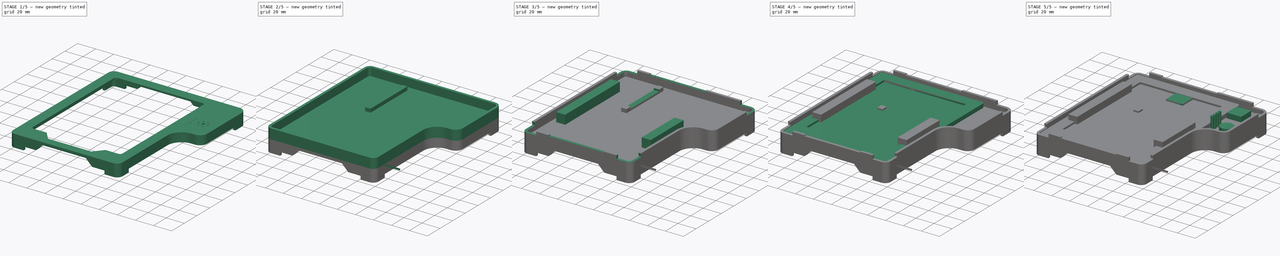
[diagram: build sequence overview — one tinted view per stage of 5, left to right]
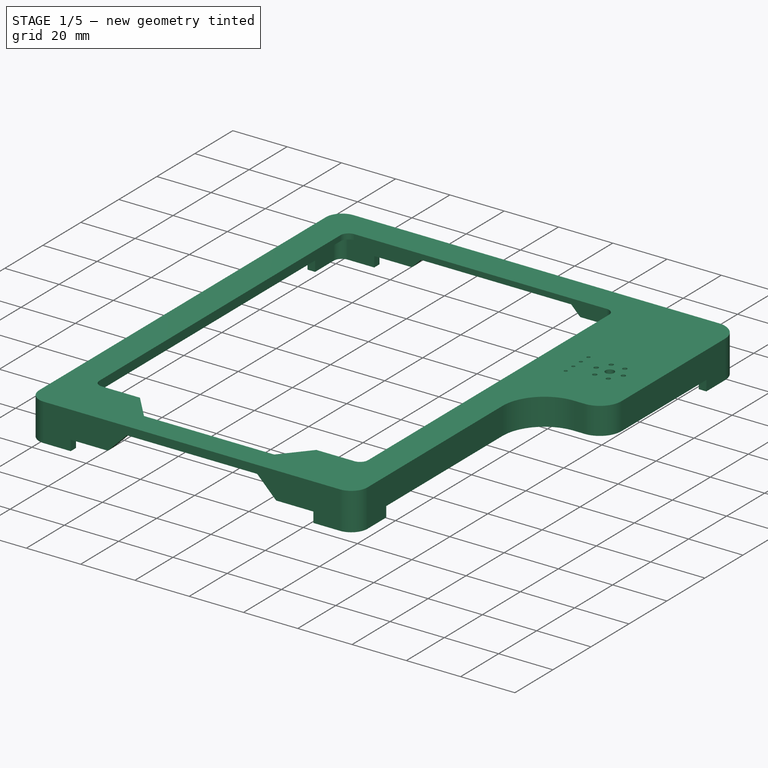
[diagram: stage 1 of 5 — iso view after this stage's code; geometry added in this stage tinted green]
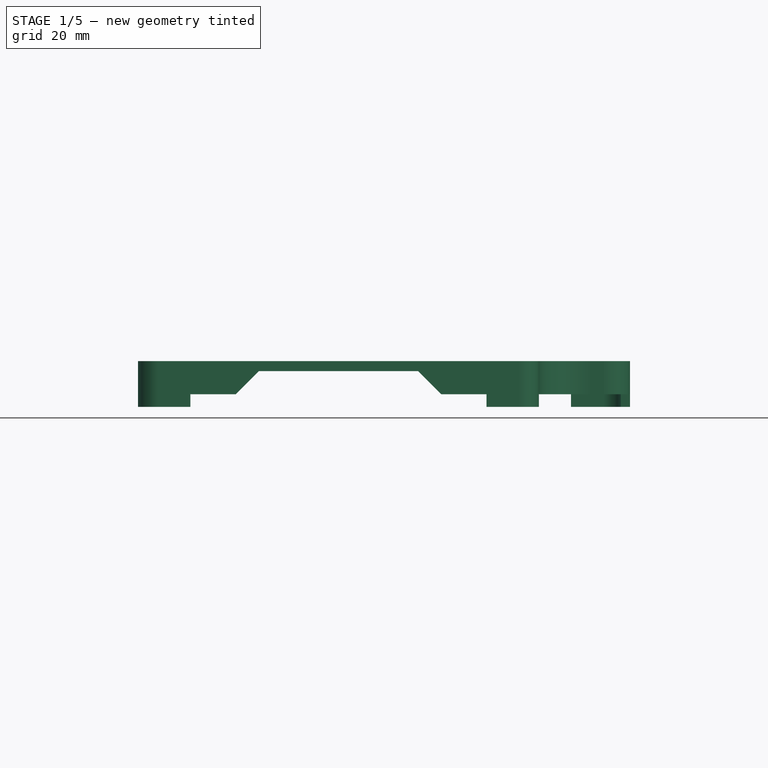
[diagram: stage 1 of 5 — front view after this stage's code; geometry added in this stage tinted green]
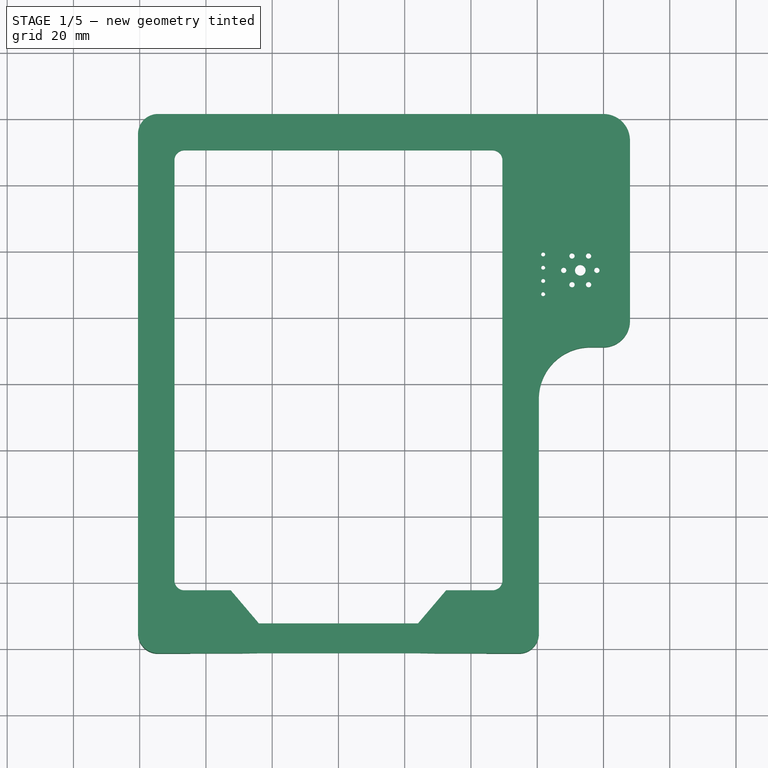
[diagram: stage 1 of 5 — top view after this stage's code; geometry added in this stage tinted green]
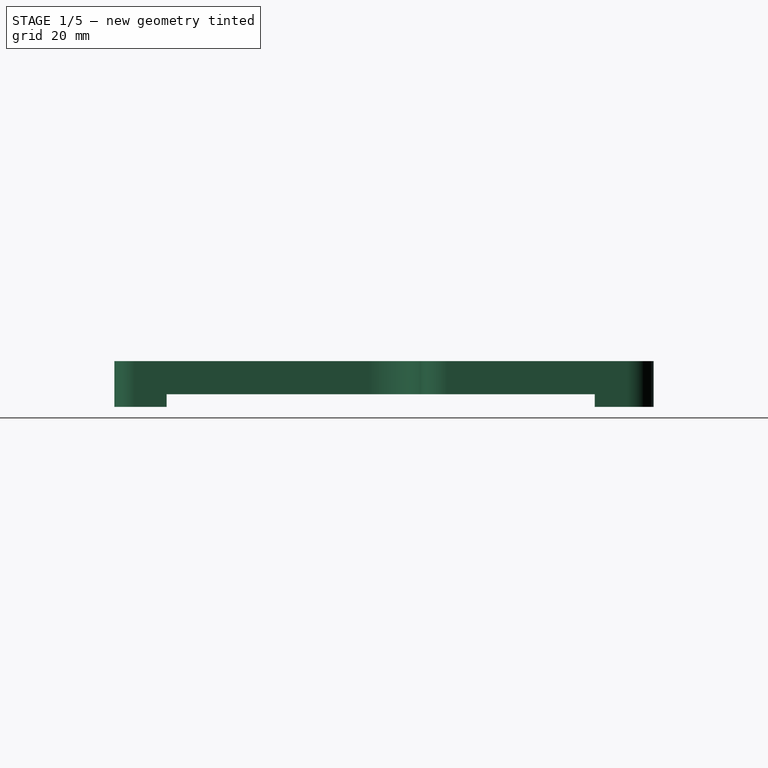
[diagram: stage 1 of 5 — right view after this stage's code; geometry added in this stage tinted green]
FCSTD DOCUMENT  (FreeCAD 0.17R13541 (Git))
Label: Kobo-Working
License: All rights reserved
LicenseURL: http://en.wikipedia.org/wiki/All_rights_reserved
objects: Sketcher::SketchObject×41, PartDesign::Pocket×12, PartDesign::Pad×11, PartDesign::Plane×9, PartDesign::ShapeBinder×6, PartDesign::Body×5, PartDesign::SubtractiveLoft×4, PartDesign::AdditiveLoft×4, PartDesign::Fillet×1
note: 124 computed .brp shape members not serialized (recipe doc carries the construction recipe); baked Part::Feature solids carry a one-line shape summary decoded from their .brp

FEATURE [PartDesign::Body] Body003  label="Kobo"
  Group = -> [ShapeBinder002,Sketch003,Pad,Sketch004,Pocket,Sketch005,Pocket001,Fillet,Sketch012,Pocket003,Sketch013,Pocket004]
  Origin = -> Origin003
  Placement = pos=(0,0,12) rot=(0,0,1;0rad)
  Tip = -> Pocket004
FEATURE [PartDesign::ShapeBinder] ShapeBinder004  label="ShapeBinder-Kobo-Cover"
  Support = -> [Sketch]
FEATURE [PartDesign::ShapeBinder] ShapeBinder005  label="ShapeBinder-Vario-Cover"
  Support = -> [Sketch001]
FEATURE [Sketcher::SketchObject] Sketch014
  ExternalGeometry = -> [ShapeBinder004,ShapeBinder005]
  MapMode = 5
  Support = -> [XY_Plane002]
  sketch-geometry (12):
    g0: LineSegment StartX=-54.5 StartY=81.4 StartZ=0 EndX=80 EndY=81.4 EndZ=0
    g1: LineSegment StartX=88 StartY=73.4 StartZ=0 EndX=88 EndY=19 EndZ=0
    g2: LineSegment StartX=54.5 StartY=-81.4 StartZ=0 EndX=-54.5 EndY=-81.4 EndZ=0
    g3: LineSegment StartX=-60.5 StartY=-75.4 StartZ=0 EndX=-60.5 EndY=75.4 EndZ=0
    g4: LineSegment StartX=76 StartY=11 StartZ=0 EndX=80 EndY=11 EndZ=0
    g5: LineSegment StartX=60.5 StartY=-75.4 StartZ=0 EndX=60.5 EndY=-4.5 EndZ=0
    g6: ArcOfCircle CenterX=-54.5 CenterY=75.4 CenterZ=0 NormalX=0 NormalY=0 NormalZ=1 AngleXU=0 Radius=6 StartAngle=1.5708 EndAngle=3.14159
    g7: ArcOfCircle CenterX=80 CenterY=73.4 CenterZ=0 NormalX=0 NormalY=0 NormalZ=1 AngleXU=0 Radius=8 StartAngle=0 EndAngle=1.5708
    g8: ArcOfCircle CenterX=80 CenterY=19 CenterZ=0 NormalX=0 NormalY=0 NormalZ=1 AngleXU=0 Radius=8 StartAngle=4.71239 EndAngle=6.28319
    g9: ArcOfCircle CenterX=76 CenterY=-4.5 CenterZ=0 NormalX=0 NormalY=0 NormalZ=1 AngleXU=0 Radius=15.5 StartAngle=1.5708 EndAngle=3.14159
    g10: ArcOfCircle CenterX=54.5 CenterY=-75.4 CenterZ=0 NormalX=0 NormalY=0 NormalZ=1 AngleXU=0 Radius=6 StartAngle=4.71239 EndAngle=6.28319
    g11: ArcOfCircle CenterX=-54.5 CenterY=-75.4 CenterZ=0 NormalX=0 NormalY=0 NormalZ=1 AngleXU=0 Radius=6 StartAngle=3.14159 EndAngle=4.71239
  constraints (30):
    c: Horizontal(g0)
    c: Horizontal(g2)
    c: Vertical(g1)
    c: Vertical(g3)
    c: Horizontal(g4)
    c: Vertical(g5)
    c: Tangent(g0,g6) = 1.5708
    c: Tangent(g3,g6) = 1.5708
    c: Tangent(g0,g7) = 1.5708
    c: Tangent(g1,g7) = 1.5708
    c: Tangent(g1,g8) = 1.5708
    c: Tangent(g4,g8) = -1.5708
    c: Tangent(g4,g9) = 1.5708
    c: Tangent(g5,g9) = 1.5708
    c: Tangent(g2,g10) = 1.5708
    c: Tangent(g5,g10) = -1.5708
    c: Tangent(g2,g11) = 1.5708
    c: Tangent(g3,g11) = 1.5708
    c: Vertical(g6,g11)
    c: Horizontal(g11,g10)
    c: DistanceX(g3,g11) = 6
    c: DistanceY(g-3,g0) = 3
    c: DistanceX(g3,g-3) = 3
    c: DistanceX(g-5,g1) = 3
    c: DistanceY(g4,g-5) = 3
    c: DistanceY(g2,g-4) = 3
    c: DistanceX(g-4,g5) = 3
    c: DistanceX(g4,g4) = 4
    c: Vertical(g8,g7)
    c: DistanceX(g7,g1) = 8
FEATURE [PartDesign::Pad] Pad007
  Length = 10
  Length2 = 100
  Profile = -> Sketch014
  Reversed = true
  Type = 0
FEATURE [Sketcher::SketchObject] Sketch017
  ExternalGeometry = -> [ShapeBinder004,ShapeBinder005]
  MapMode = 5
  Placement = pos=(0,0,-10) rot=(1,0,0;3.14159rad)
  Support = -> [Pad007]
  sketch-geometry (12):
    g0: LineSegment StartX=-54.7 StartY=78.6 StartZ=0 EndX=54.7 EndY=78.6 EndZ=0
    g1: LineSegment StartX=85.2 StartY=-18.8 StartZ=0 EndX=85.2 EndY=-73.6 EndZ=0
    g2: LineSegment StartX=80.2 StartY=-78.6 StartZ=0 EndX=-54.7 EndY=-78.6 EndZ=0
    g3: LineSegment StartX=-57.7 StartY=-75.6 StartZ=0 EndX=-57.7 EndY=75.6 EndZ=0
    g4: LineSegment StartX=80.2 StartY=-13.8 StartZ=0 EndX=76.2 EndY=-13.8 EndZ=0
    g5: LineSegment StartX=57.7 StartY=4.7 StartZ=0 EndX=57.7 EndY=75.6 EndZ=0
    g6: ArcOfCircle CenterX=-54.7 CenterY=75.6 CenterZ=0 NormalX=0 NormalY=0 NormalZ=1 AngleXU=0 Radius=3 StartAngle=1.5708 EndAngle=3.14159
    g7: ArcOfCircle CenterX=54.7 CenterY=75.6 CenterZ=0 NormalX=0 NormalY=0 NormalZ=1 AngleXU=0 Radius=3 StartAngle=0 EndAngle=1.5708
    g8: ArcOfCircle CenterX=-54.7 CenterY=-75.6 CenterZ=0 NormalX=0 NormalY=0 NormalZ=1 AngleXU=0 Radius=3 StartAngle=3.14159 EndAngle=4.71239
    g9: ArcOfCircle CenterX=80.2 CenterY=-73.6 CenterZ=0 NormalX=0 NormalY=0 NormalZ=1 AngleXU=0 Radius=5 StartAngle=4.71239 EndAngle=6.28319
    g10: ArcOfCircle CenterX=80.2 CenterY=-18.8 CenterZ=0 NormalX=0 NormalY=0 NormalZ=1 AngleXU=0 Radius=5 StartAngle=0 EndAngle=1.5708
    g11: ArcOfCircle CenterX=76.2 CenterY=4.7 CenterZ=0 NormalX=0 NormalY=0 NormalZ=1 AngleXU=0 Radius=18.5 StartAngle=3.14159 EndAngle=4.71239
  constraints (30):
    c: Horizontal(g0)
    c: Horizontal(g2)
    c: Vertical(g1)
    c: Vertical(g3)
    c: Horizontal(g4)
    c: Vertical(g5)
    c: Tangent(g0,g6) = 1.5708
    c: Tangent(g3,g6) = 1.5708
    c: Tangent(g0,g7) = 1.5708
    c: Tangent(g5,g7) = -1.5708
    c: Tangent(g2,g8) = 1.5708
    c: Tangent(g3,g8) = 1.5708
    c: Tangent(g1,g9) = 1.5708
    c: Tangent(g2,g9) = 1.5708
    c: Tangent(g1,g10) = 1.5708
    c: Tangent(g4,g10) = -1.5708
    c: Tangent(g4,g11) = 1.5708
    c: Tangent(g5,g11) = 1.5708
    c: Vertical(g9,g10)
    c: Vertical(g6,g8)
    c: Horizontal(g6,g7)
    c: DistanceY(g2,g8) = 3
    c: DistanceY(g2,g-4) = 0.2
    c: DistanceX(g3,g-4) = 0.2
    c: DistanceY(g-3,g0) = 0.2
    c: DistanceX(g-3,g5) = 0.2
    c: DistanceX(g-5,g1) = 0.2
    c: DistanceY(g2,g9) = 5
    c: DistanceX(g4,g4) = 4
    c: DistanceY(g-5,g4) = 0.2
FEATURE [PartDesign::Pocket] Pocket006
  BaseFeature = -> Pad007
  Length = 8
  Length2 = 100
  Profile = -> Sketch017
  Type = 0
FEATURE [Sketcher::SketchObject] Sketch018
  ExternalGeometry = -> [ShapeBinder004]
  MapMode = 5
  Support = -> [Pocket006]
  sketch-geometry (12):
    g0: LineSegment StartX=-46.5 StartY=70.4 StartZ=0 EndX=46.5 EndY=70.4 EndZ=0
    g1: LineSegment StartX=49.5 StartY=67.4 StartZ=0 EndX=49.5 EndY=-59.4 EndZ=0
    g2: LineSegment StartX=46.5 StartY=-62.4 StartZ=0 EndX=32.5 EndY=-62.4 EndZ=0
    g3: LineSegment StartX=-49.5 StartY=-59.4 StartZ=0 EndX=-49.5 EndY=67.4 EndZ=0
    g4: ArcOfCircle CenterX=-46.5 CenterY=67.4 CenterZ=0 NormalX=0 NormalY=0 NormalZ=1 AngleXU=0 Radius=3 StartAngle=1.5708 EndAngle=3.14159
    g5: ArcOfCircle CenterX=46.5 CenterY=67.4 CenterZ=0 NormalX=0 NormalY=0 NormalZ=1 AngleXU=0 Radius=3 StartAngle=0 EndAngle=1.5708
    g6: ArcOfCircle CenterX=46.5 CenterY=-59.4 CenterZ=0 NormalX=0 NormalY=0 NormalZ=1 AngleXU=0 Radius=3 StartAngle=4.71239 EndAngle=6.28319
    g7: ArcOfCircle CenterX=-46.5 CenterY=-59.4 CenterZ=0 NormalX=0 NormalY=0 NormalZ=1 AngleXU=0 Radius=3 StartAngle=3.14159 EndAngle=4.71239
    g8: LineSegment StartX=32.5 StartY=-62.4 StartZ=0 EndX=24 EndY=-72.4 EndZ=0
    g9: LineSegment StartX=24 StartY=-72.4 StartZ=0 EndX=-24 EndY=-72.4 EndZ=0
    g10: LineSegment StartX=-24 StartY=-72.4 StartZ=0 EndX=-32.5 EndY=-62.4 EndZ=0
    g11: LineSegment StartX=-32.5 StartY=-62.4 StartZ=0 EndX=-46.5 EndY=-62.4 EndZ=0
  constraints (31):
    c: Horizontal(g0)
    c: Horizontal(g2)
    c: Vertical(g1)
    c: Vertical(g3)
    c: Tangent(g0,g4) = 1.5708
    c: Tangent(g3,g4) = 1.5708
    c: Tangent(g0,g5) = 1.5708
    c: Tangent(g1,g5) = 1.5708
    c: Tangent(g1,g6) = 1.5708
    c: Tangent(g2,g6) = 1.5708
    c: Coincident(g11,g7) = 1.5708
    c: Tangent(g3,g7) = 1.5708
    c: Vertical(g4,g7)
    c: Vertical(g5,g6)
    c: Horizontal(g4,g5)
    c: DistanceY(g4,g0) = 3
    c: Coincident(g8,g9)
    c: Coincident(g9,g10)
    c: Coincident(g2,g8)
    c: Tangent(g2,g11)
    c: Coincident(g10,g11)
    c: DistanceX(g-4,g3) = 8
    c: DistanceY(g0,g-3) = 8
    c: DistanceY(g-4,g8) = 6
    c: DistanceY(g-4,g2) = 16
    c: Symmetric(g9,g8,g-2)
    c: Equal(g11,g2)
    c: DistanceX(g9,g9) = 48
    c: DistanceX(g11,g11) = 14
    c: DistanceX(g1,g-4) = 8
    c: Vertical(g7,g7)
FEATURE [PartDesign::Pocket] Pocket007
  BaseFeature = -> Pocket006
  Length = 2
  Length2 = 100
  Profile = -> Sketch018
  Type = 0
FEATURE [Sketcher::SketchObject] Sketch022
  ExternalGeometry = -> [ShapeBinder005]
  MapMode = 5
  Support = -> [Pocket007]
  sketch-geometry (18):
    g0: Circle CenterX=61.8 CenterY=39 CenterZ=0 NormalX=0 NormalY=0 NormalZ=1 AngleXU=0 Radius=0.6
    g1: Circle CenterX=61.8 CenterY=35 CenterZ=0 NormalX=0 NormalY=0 NormalZ=1 AngleXU=0 Radius=0.6
    g2: Circle CenterX=61.8 CenterY=31 CenterZ=0 NormalX=0 NormalY=0 NormalZ=1 AngleXU=0 Radius=0.6
    g3: Circle CenterX=61.8 CenterY=27 CenterZ=0 NormalX=0 NormalY=0 NormalZ=1 AngleXU=0 Radius=0.6
    g4: Circle CenterX=73 CenterY=34.2 CenterZ=0 NormalX=0 NormalY=0 NormalZ=1 AngleXU=0 Radius=1.6
    g5: Circle CenterX=70.5 CenterY=38.5301 CenterZ=0 NormalX=0 NormalY=0 NormalZ=1 AngleXU=0 Radius=0.8
    g6: Circle CenterX=75.5 CenterY=38.5301 CenterZ=0 NormalX=0 NormalY=0 NormalZ=1 AngleXU=0 Radius=0.8
    g7: Circle CenterX=78 CenterY=34.2 CenterZ=0 NormalX=0 NormalY=0 NormalZ=1 AngleXU=0 Radius=0.8
    g8: Circle CenterX=75.5 CenterY=29.8699 CenterZ=0 NormalX=0 NormalY=0 NormalZ=1 AngleXU=0 Radius=0.8
    g9: Circle CenterX=70.5 CenterY=29.8699 CenterZ=0 NormalX=0 NormalY=0 NormalZ=1 AngleXU=0 Radius=0.8
    g10: Circle CenterX=68 CenterY=34.2 CenterZ=0 NormalX=0 NormalY=0 NormalZ=1 AngleXU=0 Radius=0.8
    g11: LineSegment [constr] StartX=75.5 StartY=29.8699 StartZ=0 EndX=78 EndY=34.2 EndZ=0
    g12: LineSegment [constr] StartX=78 StartY=34.2 StartZ=0 EndX=75.5 EndY=38.5301 EndZ=0
    g13: LineSegment [constr] StartX=75.5 StartY=38.5301 StartZ=0 EndX=70.5 EndY=38.5301 EndZ=0
    g14: LineSegment [constr] StartX=70.5 StartY=38.5301 StartZ=0 EndX=68 EndY=34.2 EndZ=0
    g15: LineSegment [constr] StartX=68 StartY=34.2 StartZ=0 EndX=70.5 EndY=29.8699 EndZ=0
    g16: LineSegment [constr] StartX=70.5 StartY=29.8699 StartZ=0 EndX=75.5 EndY=29.8699 EndZ=0
    g17: Circle [constr] CenterX=73 CenterY=34.2 CenterZ=0 NormalX=0 NormalY=0 NormalZ=1 AngleXU=0 Radius=5
  constraints (38):
    c: Coincident(g0,g-3)
    c: Coincident(g1,g-4)
    c: Coincident(g2,g-5)
    c: Coincident(g3,g-6)
    c: Coincident(g4,g-7)
    c: Equal(g0,g1)
    c: Equal(g1,g2)
    c: Equal(g2,g3)
    c: Radius(g0) = 0.6
    c: Radius(g4) = 1.6
    c: Coincident(g11,g12)
    c: Coincident(g12,g13)
    c: Coincident(g13,g14)
    c: Coincident(g14,g15)
    c: Coincident(g15,g16)
    c: Coincident(g16,g11)
    c: Equal(g11, g12-g16) x5
    c: PointOnObject(g11,g17)
    c: PointOnObject(g12,g17)
    c: PointOnObject(g13,g17)
    c: PointOnObject(g14,g17)
    c: PointOnObject(g15,g17)
    c: PointOnObject(g16,g17)
    c: Coincident(g4,g17)
    c: Coincident(g5,g13)
    c: Coincident(g6,g12)
    c: Coincident(g7,g11)
    c: Coincident(g8,g11)
    c: Coincident(g9,g15)
    c: Coincident(g10,g14)
    c: Horizontal(g4,g7)
    c: DistanceX(g4,g7) = 5
    c: Equal(g9,g10)
    c: Equal(g10,g5)
    c: Equal(g5,g6)
    c: Equal(g6,g7)
    c: Equal(g7,g8)
    c: Radius(g6) = 0.8
FEATURE [PartDesign::Pocket] Pocket009
  BaseFeature = -> Pocket007
  Length = 2
  Length2 = 100
  Profile = -> Sketch022
  Type = 0
FEATURE [Sketcher::SketchObject] Sketch023
  MapMode = 5
  Placement = pos=(0,81.4,0) rot=(0,0.707107,0.707107;3.14159rad)
  Support = -> [Pocket009]
  sketch-geometry (4):
    g0: LineSegment StartX=-24 StartY=-3 StartZ=0 EndX=24 EndY=-3 EndZ=0
    g1: LineSegment StartX=24 StartY=-3 StartZ=0 EndX=31 EndY=-10 EndZ=0
    g2: LineSegment StartX=31 StartY=-10 StartZ=0 EndX=-31 EndY=-10 EndZ=0
    g3: LineSegment StartX=-31 StartY=-10 StartZ=0 EndX=-24 EndY=-3 EndZ=0
  constraints (10):
    c: Coincident(g0,g1)
    c: Coincident(g1,g2)
    c: Coincident(g2,g3)
    c: Coincident(g3,g0)
    c: Symmetric(g0,g0,g-2)
    c: Symmetric(g1,g2,g-2)
    c: DistanceY(g0,g-1) = 3
    c: DistanceX(g0,g0) = 48
    c: DistanceX(g2,g2) = 62
    c: DistanceY(g1,g0) = 7
FEATURE [PartDesign::Pocket] Pocket010
  BaseFeature = -> Pocket009
  Length = 5
  Length2 = 100
  Profile = -> Sketch023
  Type = 1
FEATURE [Sketcher::SketchObject] Sketch026
  ExternalGeometry = -> [ShapeBinder004,ShapeBinder005]
  MapMode = 5
  Placement = pos=(0,0,-10) rot=(1,0,0;3.14159rad)
  Support = -> [Pocket010]
  sketch-geometry (32):
    g0: LineSegment StartX=-54.5 StartY=81.4 StartZ=0 EndX=-44.7 EndY=81.4 EndZ=0
    g1: LineSegment StartX=-44.7 StartY=81.4 StartZ=0 EndX=-44.7 EndY=78.6 EndZ=0
    g2: LineSegment StartX=-57.7 StartY=65.6 StartZ=0 EndX=-60.5 EndY=65.6 EndZ=0
    g3: LineSegment StartX=-60.5 StartY=65.6 StartZ=0 EndX=-60.5 EndY=75.4 EndZ=0
    g4: LineSegment StartX=-54.7 StartY=78.6 StartZ=0 EndX=-44.7 EndY=78.6 EndZ=0
    g5: LineSegment StartX=-57.7 StartY=65.6 StartZ=0 EndX=-57.7 EndY=75.6 EndZ=0
    g6: LineSegment StartX=54.5 StartY=81.4 StartZ=0 EndX=44.7 EndY=81.4 EndZ=0
    g7: LineSegment StartX=44.7 StartY=81.4 StartZ=0 EndX=44.7 EndY=78.6 EndZ=0
    g8: LineSegment StartX=57.7 StartY=65.6 StartZ=0 EndX=60.5 EndY=65.6 EndZ=0
    g9: LineSegment StartX=60.5 StartY=65.6 StartZ=0 EndX=60.5 EndY=75.4 EndZ=0
    g10: LineSegment StartX=54.5 StartY=78.6 StartZ=0 EndX=44.7 EndY=78.6 EndZ=0
    g11: LineSegment StartX=57.7 StartY=65.6 StartZ=0 EndX=57.7 EndY=75.4 EndZ=0
    g12: LineSegment StartX=-54.7 StartY=-81.4 StartZ=0 EndX=-44.9 EndY=-81.4 EndZ=0
    g13: LineSegment StartX=-44.9 StartY=-81.4 StartZ=0 EndX=-44.9 EndY=-78.6 EndZ=0
    g14: LineSegment StartX=-57.7 StartY=-65.8 StartZ=0 EndX=-60.5 EndY=-65.8 EndZ=0
    g15: LineSegment StartX=-60.5 StartY=-65.8 StartZ=0 EndX=-60.5 EndY=-75.6 EndZ=0
    g16: LineSegment StartX=-54.7 StartY=-78.6 StartZ=0 EndX=-44.9 EndY=-78.6 EndZ=0
    g17: LineSegment StartX=-57.7 StartY=-65.8 StartZ=0 EndX=-57.7 EndY=-75.6 EndZ=0
    g18: LineSegment StartX=80 StartY=-81.4 StartZ=0 EndX=70.2 EndY=-81.4 EndZ=0
    g19: LineSegment StartX=70.2 StartY=-81.4 StartZ=0 EndX=70.2 EndY=-78.6 EndZ=0
    g20: LineSegment StartX=85.2 StartY=-63.6 StartZ=0 EndX=88 EndY=-63.6 EndZ=0
    g21: LineSegment StartX=88 StartY=-63.6 StartZ=0 EndX=88 EndY=-73.4 EndZ=0
    g22: LineSegment StartX=80 StartY=-78.6 StartZ=0 EndX=70.2 EndY=-78.6 EndZ=0
    g23: LineSegment StartX=85.2 StartY=-63.6 StartZ=0 EndX=85.2 EndY=-73.4 EndZ=0
    g24: ArcOfCircle CenterX=-54.7 CenterY=-75.6 CenterZ=0 NormalX=0 NormalY=0 NormalZ=1 AngleXU=0 Radius=3 StartAngle=3.14159 EndAngle=4.71239
    g25: ArcOfCircle CenterX=-54.7 CenterY=-75.6 CenterZ=0 NormalX=0 NormalY=0 NormalZ=1 AngleXU=0 Radius=5.8 StartAngle=3.14159 EndAngle=4.71239
    g26: ArcOfCircle CenterX=80 CenterY=-73.4 CenterZ=0 NormalX=0 NormalY=0 NormalZ=1 AngleXU=0 Radius=5.2 StartAngle=4.71239 EndAngle=6.28319
    g27: ArcOfCircle CenterX=80 CenterY=-73.4 CenterZ=0 NormalX=0 NormalY=0 NormalZ=1 AngleXU=0 Radius=8 StartAngle=4.71239 EndAngle=6.28319
    g28: ArcOfCircle CenterX=54.5 CenterY=75.4 CenterZ=0 NormalX=0 NormalY=0 NormalZ=1 AngleXU=0 Radius=3.2 StartAngle=0 EndAngle=1.5708
    g29: ArcOfCircle CenterX=54.5 CenterY=75.4 CenterZ=0 NormalX=0 NormalY=0 NormalZ=1 AngleXU=0 Radius=6 StartAngle=0 EndAngle=1.5708
    g30: ArcOfCircle CenterX=-54.5 CenterY=75.4 CenterZ=0 NormalX=0 NormalY=0 NormalZ=1 AngleXU=0 Radius=6 StartAngle=1.5708 EndAngle=3.14159
    g31: ArcOfCircle CenterX=-54.7 CenterY=75.6 CenterZ=0 NormalX=0 NormalY=0 NormalZ=1 AngleXU=0 Radius=3 StartAngle=1.5708 EndAngle=3.14159
  constraints (88):
    c: Coincident(g0,g1)
    c: Coincident(g2,g3)
    c: Horizontal(g0)
    c: Horizontal(g2)
    c: Vertical(g1)
    c: Vertical(g3)
    c: Horizontal(g4)
    c: Vertical(g5)
    c: Coincident(g6,g7)
    c: Coincident(g8,g9)
    c: Horizontal(g6)
    c: Horizontal(g8)
    c: Vertical(g7)
    c: Vertical(g9)
    c: Horizontal(g10)
    c: Vertical(g11)
    c: Coincident(g12,g13)
    c: Coincident(g14,g15)
    c: Horizontal(g12)
    c: Horizontal(g14)
    c: Vertical(g13)
    c: Vertical(g15)
    c: Horizontal(g16)
    c: Vertical(g17)
    c: Coincident(g18,g19)
    c: Coincident(g20,g21)
    c: Horizontal(g18)
    c: Horizontal(g20)
    c: Vertical(g19)
    c: Vertical(g21)
    c: Horizontal(g22)
    c: Vertical(g23)
    c: Coincident(g19,g22)
    c: Coincident(g23,g20)
    c: Coincident(g16,g13)
    c: Coincident(g14,g17)
    c: Coincident(g7,g10)
    c: Coincident(g11,g8)
    c: Coincident(g2,g5)
    c: Coincident(g4,g1)
    c: Tangent(g16,g24) = -1.5708
    c: Tangent(g17,g24) = -1.5708
    c: Tangent(g12,g25) = -1.5708
    c: Tangent(g15,g25) = -1.5708
    c: Tangent(g22,g26) = 1.5708
    c: Tangent(g23,g26) = 1.5708
    c: Tangent(g18,g27) = 1.5708
    c: Tangent(g21,g27) = 1.5708
    c: Tangent(g10,g28) = -1.5708
    c: Tangent(g11,g28) = -1.5708
    c: Tangent(g6,g29) = -1.5708
    c: Tangent(g9,g29) = -1.5708
    c: Tangent(g0,g30) = 1.5708
    c: Tangent(g3,g30) = 1.5708
    c: Tangent(g4,g31) = 1.5708
    c: Tangent(g5,g31) = 1.5708
    c: Equal(g0,g3)
    c: Equal(g3,g6)
    c: Equal(g6,g9)
    c: Equal(g9,g21)
    c: Equal(g21,g18)
    c: Equal(g18,g12)
    c: Equal(g12,g15)
    c: DistanceX(g3,g0) = 6
    c: DistanceY(g-3,g0) = 3
    c: DistanceX(g3,g-3) = 3
    c: DistanceX(g5,g-3) = 0.2
    c: DistanceY(g-3,g4) = 0.2
    c: Horizontal(g11,g9)
    c: DistanceX(g-3,g9) = 3
    c: DistanceX(g-3,g11) = 0.2
    c: DistanceY(g-3,g6) = 3
    c: DistanceY(g-3,g10) = 0.2
    c: DistanceY(g12,g-5) = 3
    c: DistanceY(g16,g-5) = 0.2
    c: DistanceX(g17,g-5) = 0.2
    c: DistanceX(g15,g-5) = 3
    c: DistanceX(g18,g21) = 8
    c: DistanceX(g-4,g21) = 3
    c: DistanceY(g18,g-5) = 3
    c: DistanceX(g-4,g23) = 0.2
    c: DistanceY(g22,g-5) = 0.2
    c: DistanceX(g0,g0) = 9.8
    c: Vertical(g16,g12)
    c: DistanceY(g5,g4) = 3
    c: Horizontal(g30,g28)
    c: Vertical(g22,g18)
    c: Vertical(g24,g31)
FEATURE [PartDesign::Pad] Pad011
  BaseFeature = -> Pocket010
  Length = 3.8
  Length2 = 100
  Profile = -> Sketch026
  Type = 0
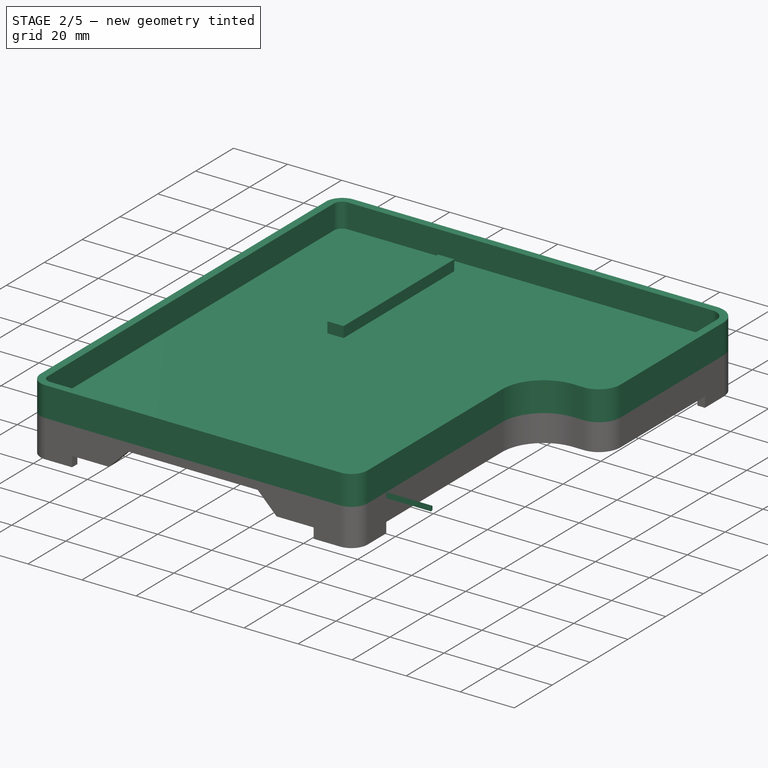
[diagram: stage 2 of 5 — iso view after this stage's code; geometry added in this stage tinted green]
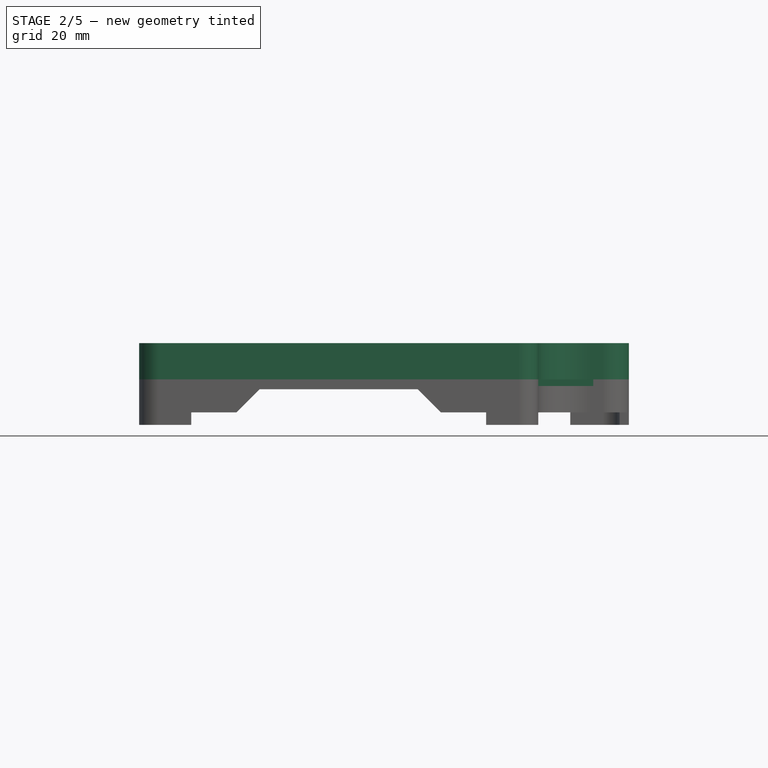
[diagram: stage 2 of 5 — front view after this stage's code; geometry added in this stage tinted green]
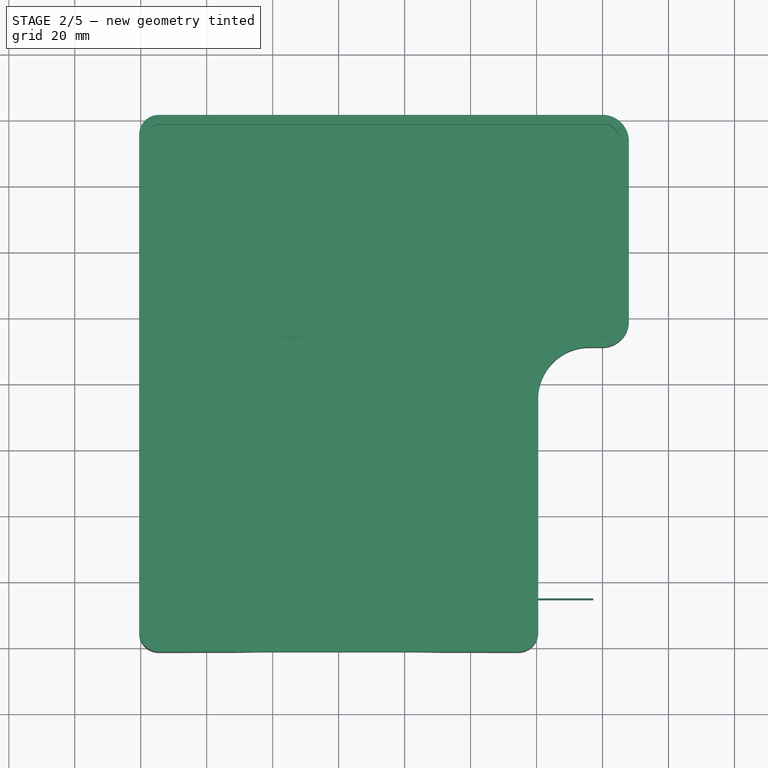
[diagram: stage 2 of 5 — top view after this stage's code; geometry added in this stage tinted green]
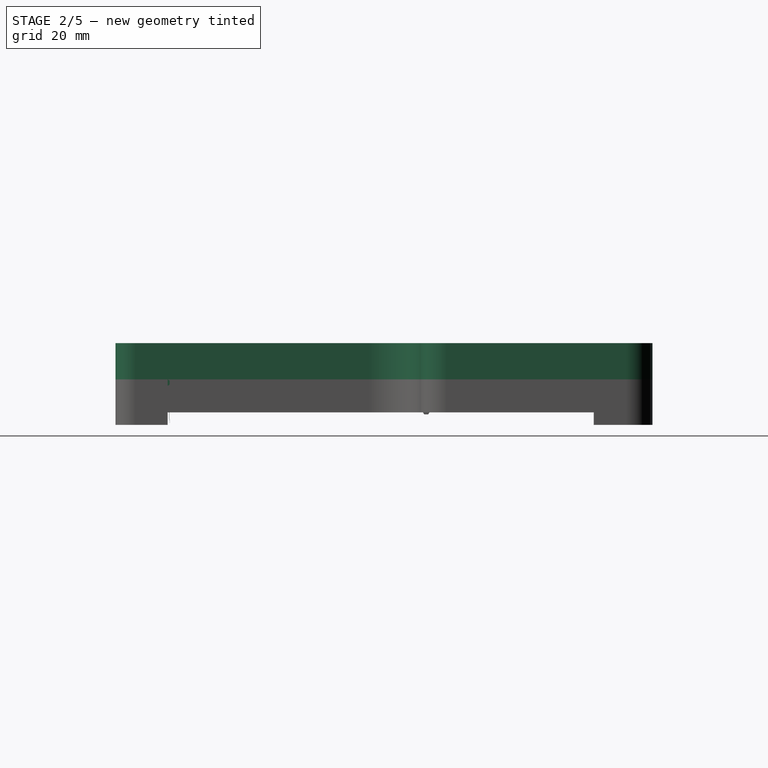
[diagram: stage 2 of 5 — right view after this stage's code; geometry added in this stage tinted green]
FEATURE [Sketcher::SketchObject] Sketch015
  ExternalGeometry = -> [ShapeBinder,ShapeBinder001]
  MapMode = 5
  Support = -> [XY_Plane001]
  sketch-geometry (12):
    g0: LineSegment StartX=-54.5 StartY=81.4 StartZ=0 EndX=80 EndY=81.4 EndZ=0
    g1: LineSegment StartX=88 StartY=73.4 StartZ=0 EndX=88 EndY=19 EndZ=0
    g2: LineSegment StartX=54.5 StartY=-81.4 StartZ=0 EndX=-54.5 EndY=-81.4 EndZ=0
    g3: LineSegment StartX=-60.5 StartY=-75.4 StartZ=0 EndX=-60.5 EndY=75.4 EndZ=0
    g4: LineSegment StartX=76 StartY=11 StartZ=0 EndX=80 EndY=11 EndZ=0
    g5: LineSegment StartX=60.5 StartY=-75.4 StartZ=0 EndX=60.5 EndY=-4.5 EndZ=0
    g6: ArcOfCircle CenterX=-54.5 CenterY=75.4 CenterZ=0 NormalX=0 NormalY=0 NormalZ=1 AngleXU=0 Radius=6 StartAngle=1.5708 EndAngle=3.14159
    g7: ArcOfCircle CenterX=80 CenterY=73.4 CenterZ=0 NormalX=0 NormalY=0 NormalZ=1 AngleXU=0 Radius=8 StartAngle=0 EndAngle=1.5708
    g8: ArcOfCircle CenterX=80 CenterY=19 CenterZ=0 NormalX=0 NormalY=0 NormalZ=1 AngleXU=0 Radius=8 StartAngle=4.71239 EndAngle=6.28319
    g9: ArcOfCircle CenterX=76 CenterY=-4.5 CenterZ=0 NormalX=0 NormalY=0 NormalZ=1 AngleXU=0 Radius=15.5 StartAngle=1.5708 EndAngle=3.14159
    g10: ArcOfCircle CenterX=54.5 CenterY=-75.4 CenterZ=0 NormalX=0 NormalY=0 NormalZ=1 AngleXU=0 Radius=6 StartAngle=4.71239 EndAngle=6.28319
    g11: ArcOfCircle CenterX=-54.5 CenterY=-75.4 CenterZ=0 NormalX=0 NormalY=0 NormalZ=1 AngleXU=0 Radius=6 StartAngle=3.14159 EndAngle=4.71239
  constraints (30):
    c: Horizontal(g0)
    c: Horizontal(g2)
    c: Vertical(g1)
    c: Vertical(g3)
    c: Horizontal(g4)
    c: Vertical(g5)
    c: Tangent(g0,g6) = 1.5708
    c: Tangent(g3,g6) = 1.5708
    c: Tangent(g0,g7) = 1.5708
    c: Tangent(g1,g7) = 1.5708
    c: Tangent(g1,g8) = 1.5708
    c: Tangent(g4,g8) = -1.5708
    c: Tangent(g4,g9) = 1.5708
    c: Tangent(g5,g9) = 1.5708
    c: Tangent(g2,g10) = 1.5708
    c: Tangent(g5,g10) = -1.5708
    c: Tangent(g2,g11) = 1.5708
    c: Tangent(g3,g11) = 1.5708
    c: Vertical(g11,g6)
    c: Horizontal(g11,g10)
    c: Vertical(g8,g7)
    c: DistanceY(g2,g11) = 6
    c: DistanceX(g-4,g5) = 3
    c: DistanceX(g3,g-4) = 3
    c: DistanceY(g-3,g0) = 3
    c: DistanceY(g7,g0) = 8
    c: DistanceX(g-5,g1) = 3
    c: DistanceY(g4,g-5) = 3
    c: DistanceX(g4,g4) = 4
    c: DistanceY(g2,g-4) = 3
FEATURE [PartDesign::Pad] Pad008
  Length = 11
  Length2 = 100
  Profile = -> Sketch015
  Type = 0
FEATURE [Sketcher::SketchObject] Sketch016
  ExternalGeometry = -> [ShapeBinder,ShapeBinder001]
  MapMode = 5
  Placement = pos=(0,0,11) rot=(0,0,1;0rad)
  Support = -> [Pad008]
  sketch-geometry (12):
    g0: LineSegment StartX=-54.7 StartY=78.6 StartZ=0 EndX=80.2 EndY=78.6 EndZ=0
    g1: LineSegment StartX=85.2 StartY=73.6 StartZ=0 EndX=85.2 EndY=18.8 EndZ=0
    g2: LineSegment StartX=54.7 StartY=-78.6 StartZ=0 EndX=-54.7 EndY=-78.6 EndZ=0
    g3: LineSegment StartX=-57.7 StartY=-75.6 StartZ=0 EndX=-57.7 EndY=75.6 EndZ=0
    g4: LineSegment StartX=76.2 StartY=13.8 StartZ=0 EndX=80.2 EndY=13.8 EndZ=0
    g5: LineSegment StartX=57.7 StartY=-75.6 StartZ=0 EndX=57.7 EndY=-4.7 EndZ=0
    g6: ArcOfCircle CenterX=-54.7 CenterY=75.6 CenterZ=0 NormalX=0 NormalY=0 NormalZ=1 AngleXU=0 Radius=3 StartAngle=1.5708 EndAngle=3.14159
    g7: ArcOfCircle CenterX=80.2 CenterY=73.6 CenterZ=0 NormalX=0 NormalY=0 NormalZ=1 AngleXU=0 Radius=5 StartAngle=0 EndAngle=1.5708
    g8: ArcOfCircle CenterX=80.2 CenterY=18.8 CenterZ=0 NormalX=0 NormalY=0 NormalZ=1 AngleXU=0 Radius=5 StartAngle=4.71239 EndAngle=6.28319
    g9: ArcOfCircle CenterX=76.2 CenterY=-4.7 CenterZ=0 NormalX=0 NormalY=0 NormalZ=1 AngleXU=0 Radius=18.5 StartAngle=1.5708 EndAngle=3.14159
    g10: ArcOfCircle CenterX=54.7 CenterY=-75.6 CenterZ=0 NormalX=0 NormalY=0 NormalZ=1 AngleXU=0 Radius=3 StartAngle=4.71239 EndAngle=6.28319
    g11: ArcOfCircle CenterX=-54.7 CenterY=-75.6 CenterZ=0 NormalX=0 NormalY=0 NormalZ=1 AngleXU=0 Radius=3 StartAngle=3.14159 EndAngle=4.71239
  constraints (30):
    c: Horizontal(g0)
    c: Horizontal(g2)
    c: Vertical(g1)
    c: Vertical(g3)
    c: Horizontal(g4)
    c: Vertical(g5)
    c: Tangent(g0,g6) = 1.5708
    c: Tangent(g3,g6) = 1.5708
    c: Tangent(g0,g7) = 1.5708
    c: Tangent(g1,g7) = 1.5708
    c: Tangent(g1,g8) = 1.5708
    c: Tangent(g4,g8) = -1.5708
    c: Tangent(g4,g9) = 1.5708
    c: Tangent(g5,g9) = 1.5708
    c: Tangent(g2,g10) = 1.5708
    c: Tangent(g5,g10) = -1.5708
    c: Tangent(g2,g11) = 1.5708
    c: Tangent(g3,g11) = 1.5708
    c: Vertical(g6,g11)
    c: Horizontal(g11,g10)
    c: Vertical(g7,g8)
    c: DistanceY(g2,g11) = 3
    c: DistanceX(g3,g-5) = 0.2
    c: DistanceY(g2,g-5) = 0.2
    c: DistanceX(g-5,g5) = 0.2
    c: DistanceY(g4,g-4) = 0.2
    c: DistanceX(g-4,g1) = 0.2
    c: DistanceY(g-3,g0) = 0.2
    c: DistanceY(g7,g0) = 5
    c: DistanceX(g4,g4) = 4
FEATURE [PartDesign::Pocket] Pocket005
  BaseFeature = -> Pad008
  Length = 9
  Length2 = 100
  Profile = -> Sketch016
  Type = 0
FEATURE [Sketcher::SketchObject] Sketch019
  ExternalGeometry = -> [ShapeBinder001]
  MapMode = 5
  Placement = pos=(0,0,2) rot=(0,0,1;0rad)
  Support = -> [Pocket005]
  sketch-geometry (8):
    g0: LineSegment StartX=-17 StartY=72.5 StartZ=0 EndX=-11 EndY=72.5 EndZ=0
    g1: LineSegment StartX=-11 StartY=72.5 StartZ=0 EndX=-11 EndY=14 EndZ=0
    g2: LineSegment StartX=-11 StartY=14 StartZ=0 EndX=-17 EndY=14 EndZ=0
    g3: LineSegment StartX=-17 StartY=14 StartZ=0 EndX=-17 EndY=72.5 EndZ=0
    g4: LineSegment StartX=79 StartY=72.5 StartZ=0 EndX=85 EndY=72.5 EndZ=0
    g5: LineSegment StartX=85 StartY=72.5 StartZ=0 EndX=85 EndY=14 EndZ=0
    g6: LineSegment StartX=85 StartY=14 StartZ=0 EndX=79 EndY=14 EndZ=0
    g7: LineSegment StartX=79 StartY=14 StartZ=0 EndX=79 EndY=72.5 EndZ=0
  constraints (20):
    c: Coincident(g0,g1)
    c: Coincident(g1,g2)
    c: Coincident(g2,g3)
    c: Coincident(g3,g0)
    c: Horizontal(g0)
    c: Horizontal(g2)
    c: Vertical(g1)
    c: Coincident(g4,g5)
    c: Coincident(g5,g6)
    c: Coincident(g6,g7)
    c: Coincident(g7,g4)
    c: Horizontal(g4)
    c: Horizontal(g6)
    c: Vertical(g7)
    c: Coincident(g2,g-4)
    c: Coincident(g0,g-3)
    c: Coincident(g4,g-3)
    c: Coincident(g5,g-4)
    c: Equal(g0,g4)
    c: DistanceX(g0,g0) = 6
FEATURE [PartDesign::Pad] Pad009
  BaseFeature = -> Pocket005
  Length = 4
  Length2 = 100
  Profile = -> Sketch019
  Type = 0
FEATURE [PartDesign::Body] Body001  label="Bottom"
  Group = -> [ShapeBinder,ShapeBinder001,Sketch015,Pad008,Sketch016,Pocket005,Sketch019,Pad009,Sketch020,Pocket008,Sketch021,Pad010,Sketch024,Pocket011,Sketch025,Pocket012,Sketch027,Sketch028,Sketch029,Sketch030,DatumPlane,DatumPlane001,DatumPlane002,Sketch032,Sketch033,SubtractiveLoft,SubtractiveLoft001,Sketch034,SubtractiveLoft002,Sketch035,SubtractiveLoft003]
  Origin = -> Origin001
  Tip = -> SubtractiveLoft003
FEATURE [PartDesign::Plane] DatumPlane003  label="DatumPlane-CoverB1"
  MapMode = 5
  Placement = pos=(0,-65.6,0) rot=(0,0.707107,0.707107;3.14159rad)
  Support = -> [Pad011]
FEATURE [PartDesign::Plane] DatumPlane004  label="DatumPlane-CoverB2"
  AttachmentOffset = pos=(0,0,0.6) rot=(0,0,1;0rad)
  MapMode = 5
  Placement = pos=(0,-65,0) rot=(0,0.707107,0.707107;3.14159rad)
  Support = -> [Pad011]
FEATURE [PartDesign::Plane] DatumPlane005  label="DatumPlane-CoverTL2"
  AttachmentOffset = pos=(0,0,0.6) rot=(0,0,1;0rad)
  MapMode = 5
  Placement = pos=(0,0,-10.6) rot=(1,0,0;3.14159rad)
  Support = -> [Pad011]
FEATURE [PartDesign::Plane] DatumPlane006  label="DatumPlane-CoverTL1"
  MapMode = 5
  Placement = pos=(0,0,-10) rot=(1,0,0;3.14159rad)
  Support = -> [Pad011]
FEATURE [PartDesign::Plane] DatumPlane007  label="DatumPlane-CoverTR1"
  MapMode = 5
  Placement = pos=(0,63.6,0) rot=(1,0,0;1.5708rad)
  Support = -> [Pad011]
FEATURE [PartDesign::Plane] DatumPlane008  label="DatumPlane-CoverTR2"
  AttachmentOffset = pos=(0,0,0.6) rot=(0,0,1;0rad)
  MapMode = 5
  Placement = pos=(0,63,0) rot=(1,0,0;1.5708rad)
  Support = -> [Pad011]
FEATURE [Sketcher::SketchObject] Sketch036  label="Loft-RB1"
  ExternalGeometry = -> [Pad011]
  MapMode = 5
  Placement = pos=(0,-65.6,0) rot=(0,0.707107,0.707107;3.14159rad)
  Support = -> [DatumPlane003]
  sketch-geometry (4):
    g0: LineSegment StartX=-60.5 StartY=0 StartZ=0 EndX=-77.2 EndY=0 EndZ=0
    g1: LineSegment StartX=-77.2 StartY=0 StartZ=0 EndX=-77.2 EndY=-2 EndZ=0
    g2: LineSegment StartX=-77.2 StartY=-2 StartZ=0 EndX=-60.5 EndY=-2 EndZ=0
    g3: LineSegment StartX=-60.5 StartY=-2 StartZ=0 EndX=-60.5 EndY=0 EndZ=0
  constraints (11):
    c: Coincident(g0,g1)
    c: Coincident(g1,g2)
    c: Coincident(g2,g3)
    c: Coincident(g3,g0)
    c: Horizontal(g0)
    c: Horizontal(g2)
    c: Vertical(g1)
    c: Vertical(g3)
    c: Coincident(g1,g-4)
    c: PointOnObject(g0,g-3)
    c: DistanceY(g3,g3) = 2
FEATURE [Sketcher::SketchObject] Sketch037  label="Loft-RB2"
  ExternalGeometry = -> [Pad011]
  MapMode = 5
  Placement = pos=(0,-65,0) rot=(0,0.707107,0.707107;3.14159rad)
  Support = -> [DatumPlane004]
  sketch-geometry (4):
    g0: LineSegment StartX=-60.5 StartY=-0.4 StartZ=0 EndX=-77.2 EndY=-0.4 EndZ=0
    g1: LineSegment StartX=-77.2 StartY=-0.4 StartZ=0 EndX=-77.2 EndY=-1.6 EndZ=0
    g2: LineSegment StartX=-77.2 StartY=-1.6 StartZ=0 EndX=-60.5 EndY=-1.6 EndZ=0
    g3: LineSegment StartX=-60.5 StartY=-1.6 StartZ=0 EndX=-60.5 EndY=-0.4 EndZ=0
  constraints (12):
    c: Coincident(g0,g1)
    c: Coincident(g1,g2)
    c: Coincident(g2,g3)
    c: Coincident(g3,g0)
    c: Horizontal(g0)
    c: Horizontal(g2)
    c: Vertical(g1)
    c: Vertical(g3)
    c: PointOnObject(g2,g-3)
    c: PointOnObject(g1,g-4)
    c: DistanceY(g-3,g2) = 0.4
    c: DistanceY(g1,g1) = 1.2
FEATURE [PartDesign::AdditiveLoft] AdditiveLoft
  BaseFeature = -> Pad011
  Closed = false
  Profile = -> Sketch036
  Ruled = false
  Sections = -> [Sketch037]
FEATURE [Sketcher::SketchObject] Sketch038  label="Loft-LB1"
  ExternalGeometry = -> [Pad011]
  MapMode = 5
  Placement = pos=(0,-65.6,0) rot=(0,0.707107,0.707107;3.14159rad)
  Support = -> [DatumPlane003]
  sketch-geometry (4):
    g0: LineSegment StartX=54.7 StartY=-1 StartZ=0 EndX=24 EndY=-1 EndZ=0
    g1: LineSegment StartX=24 StartY=-1 StartZ=0 EndX=24 EndY=-3 EndZ=0
    g2: LineSegment StartX=24 StartY=-3 StartZ=0 EndX=54.7 EndY=-3 EndZ=0
    g3: LineSegment StartX=54.7 StartY=-3 StartZ=0 EndX=54.7 EndY=-1 EndZ=0
  constraints (11):
    c: Coincident(g0,g1)
    c: Coincident(g1,g2)
    c: Coincident(g2,g3)
    c: Coincident(g3,g0)
    c: Horizontal(g0)
    c: Horizontal(g2)
    c: Vertical(g1)
    c: Vertical(g3)
    c: Coincident(g1,g-3)
    c: PointOnObject(g0,g-4)
    c: DistanceY(g1,g1) = 2
FEATURE [Sketcher::SketchObject] Sketch039  label="Loft-LB2"
  ExternalGeometry = -> [Pad011]
  MapMode = 5
  Placement = pos=(0,-65,0) rot=(0,0.707107,0.707107;3.14159rad)
  Support = -> [DatumPlane004]
  sketch-geometry (4):
    g0: LineSegment StartX=57.7 StartY=-12.2 StartZ=0 EndX=60.5 EndY=-12.2 EndZ=0
    g1: LineSegment StartX=60.5 StartY=-12.2 StartZ=0 EndX=60.5 EndY=-13.4 EndZ=0
    g2: LineSegment StartX=60.5 StartY=-13.4 StartZ=0 EndX=57.7 EndY=-13.4 EndZ=0
    g3: LineSegment StartX=57.7 StartY=-13.4 StartZ=0 EndX=57.7 EndY=-12.2 EndZ=0
  constraints (12):
    c: Coincident(g0,g1)
    c: Coincident(g1,g2)
    c: Coincident(g2,g3)
    c: Coincident(g3,g0)
    c: Horizontal(g0)
    c: Horizontal(g2)
    c: Vertical(g1)
    c: Vertical(g3)
    c: PointOnObject(g0,g-3)
    c: PointOnObject(g0,g-4)
    c: DistanceY(g-3,g1) = 0.4
    c: DistanceY(g1,g1) = 1.2
FEATURE [PartDesign::AdditiveLoft] AdditiveLoft001
  BaseFeature = -> AdditiveLoft
  Closed = false
  Profile = -> Sketch038
  Ruled = false
  Sections = -> [Sketch039]
FEATURE [Sketcher::SketchObject] Sketch040  label="Loft-LT1"
  ExternalGeometry = -> [Pad011]
  MapMode = 5
  Placement = pos=(0,0,-10) rot=(1,0,0;3.14159rad)
  Support = -> [DatumPlane006]
  sketch-geometry (4):
    g0: LineSegment StartX=-60.5 StartY=-11.8 StartZ=0 EndX=-57.7 EndY=-11.8 EndZ=0
    g1: LineSegment StartX=-57.7 StartY=-11.8 StartZ=0 EndX=-57.7 EndY=-13.8 EndZ=0
    g2: LineSegment StartX=-57.7 StartY=-13.8 StartZ=0 EndX=-60.5 EndY=-13.8 EndZ=0
    g3: LineSegment StartX=-60.5 StartY=-13.8 StartZ=0 EndX=-60.5 EndY=-11.8 EndZ=0
  constraints (11):
    c: Coincident(g0,g1)
    c: Coincident(g1,g2)
    c: Coincident(g2,g3)
    c: Coincident(g3,g0)
    c: Horizontal(g0)
    c: Horizontal(g2)
    c: Vertical(g1)
    c: Vertical(g3)
    c: Coincident(g1,g-4)
    c: PointOnObject(g0,g-3)
    c: DistanceY(g3,g3) = 2
FEATURE [Sketcher::SketchObject] Sketch041  label="Loft-RT1"
  ExternalGeometry = -> [Pad011]
  MapMode = 5
  Placement = pos=(0,63.6,0) rot=(1,0,0;1.5708rad)
  Support = -> [DatumPlane007]
  sketch-geometry (4):
    g0: LineSegment StartX=82.2 StartY=-11.8 StartZ=0 EndX=85 EndY=-11.8 EndZ=0
    g1: LineSegment StartX=85 StartY=-11.8 StartZ=0 EndX=85 EndY=-13.8 EndZ=0
    g2: LineSegment StartX=85 StartY=-13.8 StartZ=0 EndX=82.2 EndY=-13.8 EndZ=0
    g3: LineSegment StartX=82.2 StartY=-13.8 StartZ=0 EndX=82.2 EndY=-11.8 EndZ=0
  constraints (9):
    c: Coincident(g0,g1)
    c: Coincident(g1,g2)
    c: Coincident(g2,g3)
    c: Coincident(g3,g0)
    c: Horizontal(g0)
    c: Horizontal(g2)
    c: Vertical(g1)
    c: Vertical(g3)
    c: DistanceY(g1,g1) = 2
FEATURE [Sketcher::SketchObject] Sketch042  label="Loft-LT2"
  ExternalGeometry = -> [Pad011]
  MapMode = 5
  Placement = pos=(0,0,-10.6) rot=(1,0,0;3.14159rad)
  Support = -> [DatumPlane005]
  sketch-geometry (4):
    g0: LineSegment StartX=-60.5 StartY=-12.2 StartZ=0 EndX=-57.7 EndY=-12.2 EndZ=0
    g1: LineSegment StartX=-57.7 StartY=-12.2 StartZ=0 EndX=-57.7 EndY=-13.4 EndZ=0
    g2: LineSegment StartX=-57.7 StartY=-13.4 StartZ=0 EndX=-60.5 EndY=-13.4 EndZ=0
    g3: LineSegment StartX=-60.5 StartY=-13.4 StartZ=0 EndX=-60.5 EndY=-12.2 EndZ=0
  constraints (12):
    c: Coincident(g0,g1)
    c: Coincident(g1,g2)
    c: Coincident(g2,g3)
    c: Coincident(g3,g0)
    c: Horizontal(g0)
    c: Horizontal(g2)
    c: Vertical(g1)
    c: Vertical(g3)
    c: PointOnObject(g0,g-3)
    c: PointOnObject(g0,g-4)
    c: DistanceY(g3,g3) = 1.2
    c: DistanceY(g-3,g2) = 0.4
FEATURE [Sketcher::SketchObject] Sketch043  label="Loft-RT2"
  ExternalGeometry = -> [Pad011]
  MapMode = 5
  Placement = pos=(0,63,0) rot=(1,0,0;1.5708rad)
  Support = -> [DatumPlane008]
  sketch-geometry (4):
    g0: LineSegment StartX=82.2 StartY=-12.2 StartZ=0 EndX=85 EndY=-12.2 EndZ=0
    g1: LineSegment StartX=85 StartY=-12.2 StartZ=0 EndX=85 EndY=-13.4 EndZ=0
    g2: LineSegment StartX=85 StartY=-13.4 StartZ=0 EndX=82.2 EndY=-13.4 EndZ=0
    g3: LineSegment StartX=82.2 StartY=-13.4 StartZ=0 EndX=82.2 EndY=-12.2 EndZ=0
  constraints (9):
    c: Coincident(g0,g1)
    c: Coincident(g1,g2)
    c: Coincident(g2,g3)
    c: Coincident(g3,g0)
    c: Horizontal(g0)
    c: Horizontal(g2)
    c: Vertical(g1)
    c: Vertical(g3)
    c: DistanceY(g1,g1) = 1.2
FEATURE [PartDesign::AdditiveLoft] AdditiveLoft002
  BaseFeature = -> AdditiveLoft001
  Closed = false
  Profile = -> Sketch040
  Ruled = false
  Sections = -> [Sketch042]
FEATURE [PartDesign::AdditiveLoft] AdditiveLoft003
  BaseFeature = -> AdditiveLoft002
  Closed = false
  Profile = -> Sketch041
  Ruled = false
  Sections = -> [Sketch043]
FEATURE [PartDesign::Body] Body002  label="Cover"
  Group = -> [ShapeBinder004,ShapeBinder005,Sketch014,Pad007,Sketch017,Pocket006,Sketch018,Pocket007,Sketch022,Pocket009,Sketch023,Pocket010,Sketch026,Pad011,DatumPlane003,DatumPlane004,DatumPlane005,DatumPlane006,DatumPlane007,DatumPlane008,Sketch036,Sketch037,AdditiveLoft,Sketch038,Sketch039,AdditiveLoft001,Sketch040,Sketch041,Sketch042,Sketch043,AdditiveLoft002,AdditiveLoft003]
  Origin = -> Origin002
  Placement = pos=(0,0,21) rot=(0,0,1;0rad)
  Tip = -> AdditiveLoft003
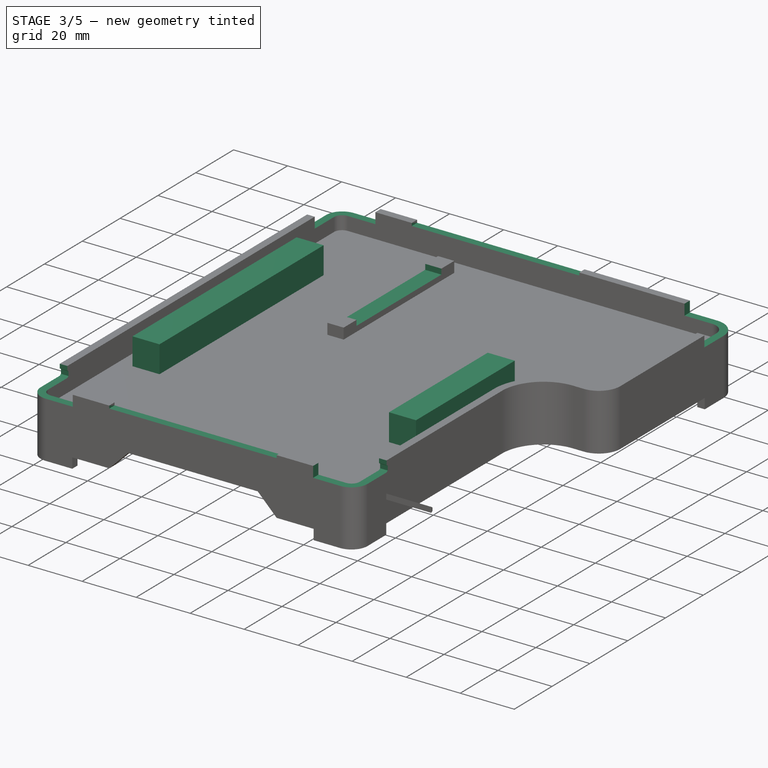
[diagram: stage 3 of 5 — iso view after this stage's code; geometry added in this stage tinted green]
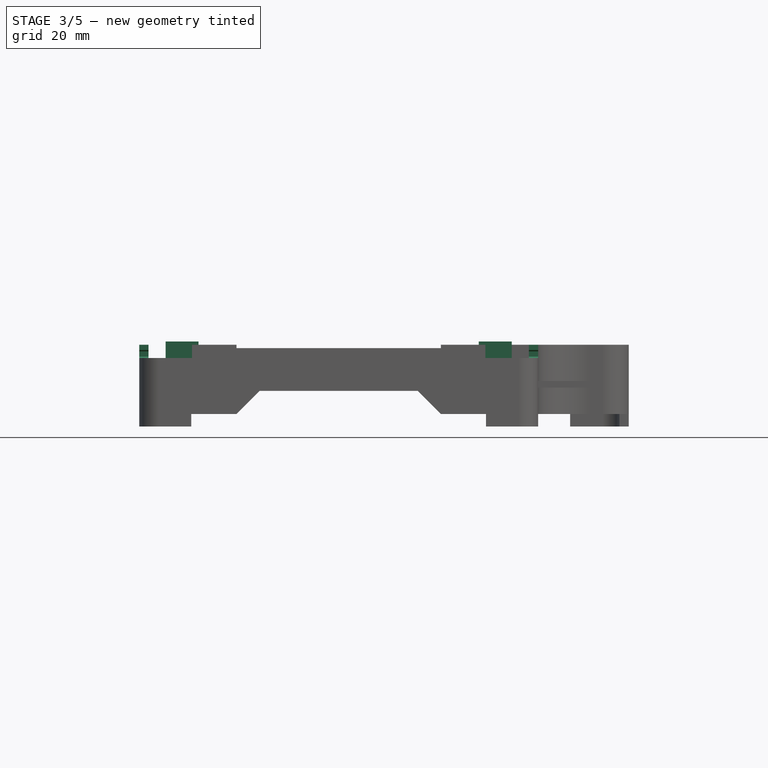
[diagram: stage 3 of 5 — front view after this stage's code; geometry added in this stage tinted green]
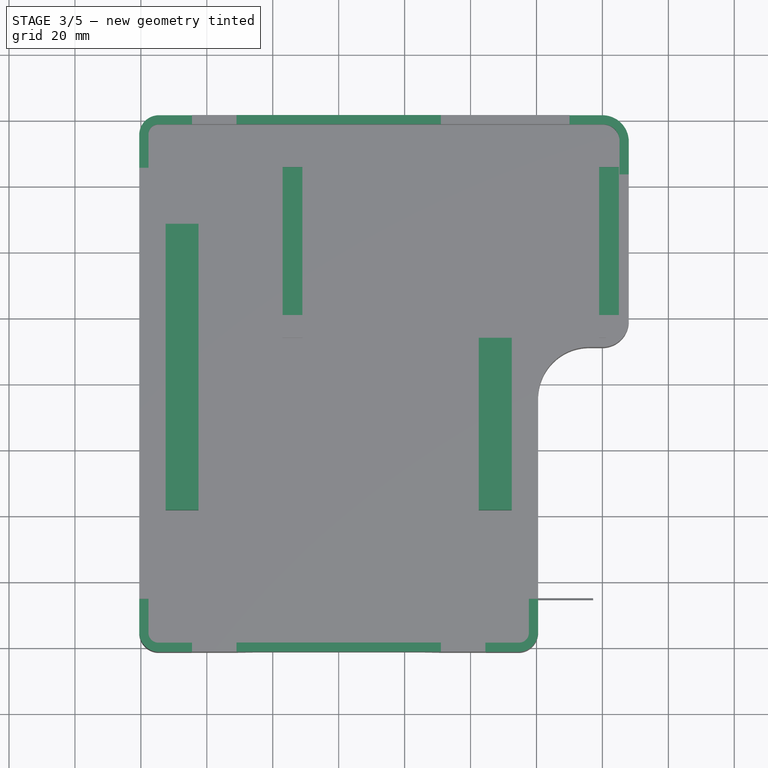
[diagram: stage 3 of 5 — top view after this stage's code; geometry added in this stage tinted green]
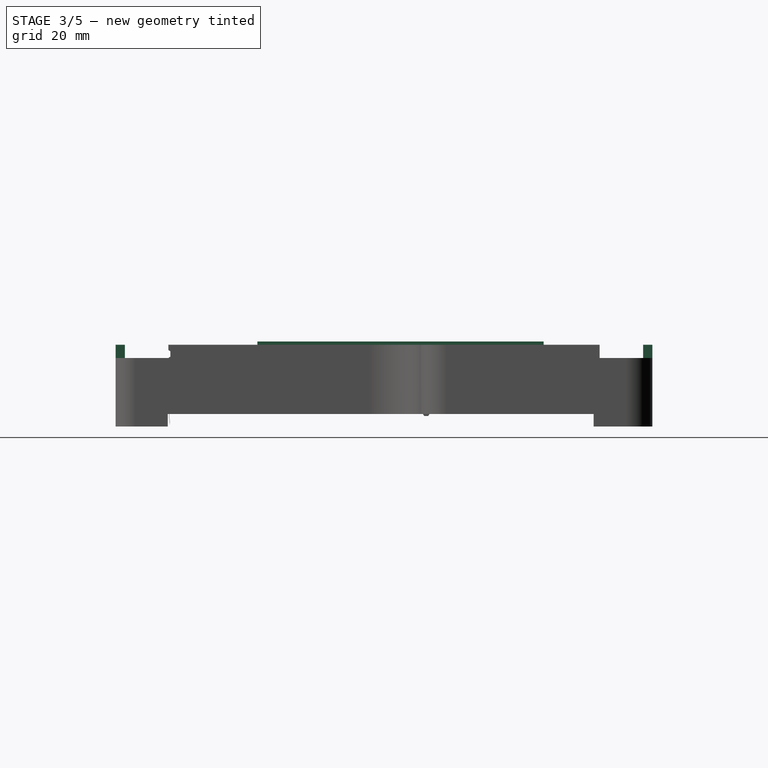
[diagram: stage 3 of 5 — right view after this stage's code; geometry added in this stage tinted green]
FEATURE [Sketcher::SketchObject] Sketch020
  ExternalGeometry = -> [ShapeBinder001]
  MapMode = 5
  Placement = pos=(0,0,6) rot=(0,0,1;0rad)
  Support = -> [Pad009]
  sketch-geometry (8):
    g0: LineSegment StartX=-17 StartY=65.7 StartZ=0 EndX=-11 EndY=65.7 EndZ=0
    g1: LineSegment StartX=-11 StartY=65.7 StartZ=0 EndX=-11 EndY=20.8 EndZ=0
    g2: LineSegment StartX=-11 StartY=20.8 StartZ=0 EndX=-17 EndY=20.8 EndZ=0
    g3: LineSegment StartX=-17 StartY=20.8 StartZ=0 EndX=-17 EndY=65.7 EndZ=0
    g4: LineSegment StartX=79 StartY=65.7 StartZ=0 EndX=85 EndY=65.7 EndZ=0
    g5: LineSegment StartX=85 StartY=65.7 StartZ=0 EndX=85 EndY=20.8 EndZ=0
    g6: LineSegment StartX=85 StartY=20.8 StartZ=0 EndX=79 EndY=20.8 EndZ=0
    g7: LineSegment StartX=79 StartY=20.8 StartZ=0 EndX=79 EndY=65.7 EndZ=0
  constraints (24):
    c: Coincident(g0,g1)
    c: Coincident(g1,g2)
    c: Coincident(g2,g3)
    c: Coincident(g3,g0)
    c: Horizontal(g0)
    c: Horizontal(g2)
    c: Vertical(g1)
    c: Vertical(g3)
    c: Coincident(g4,g5)
    c: Coincident(g5,g6)
    c: Coincident(g6,g7)
    c: Coincident(g7,g4)
    c: Horizontal(g4)
    c: Horizontal(g6)
    c: Vertical(g5)
    c: Vertical(g7)
    c: PointOnObject(g2,g-5)
    c: PointOnObject(g5,g-6)
    c: Horizontal(g0,g4)
    c: Horizontal(g1,g6)
    c: Equal(g0,g4)
    c: DistanceX(g0,g0) = 6
    c: DistanceY(g0,g-5) = 6.8
    c: DistanceY(g-5,g2) = 6.8
FEATURE [PartDesign::Pocket] Pocket008
  BaseFeature = -> Pad009
  Length = 2
  Length2 = 100
  Profile = -> Sketch020
  Type = 0
FEATURE [Sketcher::SketchObject] Sketch021
  ExternalGeometry = -> [ShapeBinder001,ShapeBinder]
  MapMode = 5
  Placement = pos=(0,0,2) rot=(0,0,1;0rad)
  Support = -> [Pocket008]
  sketch-geometry (8):
    g0: LineSegment StartX=-52.5 StartY=48.4 StartZ=0 EndX=-42.5 EndY=48.4 EndZ=0
    g1: LineSegment StartX=-42.5 StartY=48.4 StartZ=0 EndX=-42.5 EndY=-38.4 EndZ=0
    g2: LineSegment StartX=-42.5 StartY=-38.4 StartZ=0 EndX=-52.5 EndY=-38.4 EndZ=0
    g3: LineSegment StartX=-52.5 StartY=-38.4 StartZ=0 EndX=-52.5 EndY=48.4 EndZ=0
    g4: LineSegment StartX=42.5 StartY=13.8 StartZ=0 EndX=52.5 EndY=13.8 EndZ=0
    g5: LineSegment StartX=52.5 StartY=13.8 StartZ=0 EndX=52.5 EndY=-38.4 EndZ=0
    g6: LineSegment StartX=52.5 StartY=-38.4 StartZ=0 EndX=42.5 EndY=-38.4 EndZ=0
    g7: LineSegment StartX=42.5 StartY=-38.4 StartZ=0 EndX=42.5 EndY=13.8 EndZ=0
  constraints (24):
    c: Coincident(g0,g1)
    c: Coincident(g1,g2)
    c: Coincident(g2,g3)
    c: Coincident(g3,g0)
    c: Horizontal(g0)
    c: Horizontal(g2)
    c: Vertical(g1)
    c: Vertical(g3)
    c: Coincident(g4,g5)
    c: Coincident(g5,g6)
    c: Coincident(g6,g7)
    c: Coincident(g7,g4)
    c: Horizontal(g4)
    c: Horizontal(g6)
    c: Vertical(g5)
    c: Vertical(g7)
    c: DistanceX(g0,g0) = 10
    c: DistanceX(g6,g6) = 10
    c: DistanceX(g5,g-4) = 5
    c: DistanceX(g-4,g2) = 5
    c: DistanceY(g-4,g2) = 40
    c: DistanceY(g0,g-5) = 30
    c: DistanceY(g4,g-3) = 0.2
    c: Horizontal(g6,g1)
FEATURE [PartDesign::Pad] Pad010
  BaseFeature = -> Pocket008
  Length = 10
  Length2 = 100
  Profile = -> Sketch021
  Type = 0
FEATURE [Sketcher::SketchObject] Sketch024
  MapMode = 5
  Placement = pos=(0,-81.4,0) rot=(1,0,0;1.5708rad)
  Support = -> [Pad010]
  sketch-geometry (4):
    g0: LineSegment StartX=-31 StartY=11 StartZ=0 EndX=31 EndY=11 EndZ=0
    g1: LineSegment StartX=31 StartY=11 StartZ=0 EndX=31 EndY=10 EndZ=0
    g2: LineSegment StartX=31 StartY=10 StartZ=0 EndX=-31 EndY=10 EndZ=0
    g3: LineSegment StartX=-31 StartY=10 StartZ=0 EndX=-31 EndY=11 EndZ=0
  constraints (11):
    c: Coincident(g0,g1)
    c: Coincident(g1,g2)
    c: Coincident(g2,g3)
    c: Coincident(g3,g0)
    c: Horizontal(g2)
    c: Vertical(g1)
    c: Vertical(g3)
    c: DistanceX(g0,g0) = 62
    c: Symmetric(g0,g0,g-2)
    c: DistanceY(g3,g3) = 1
    c: DistanceY(g-1,g2) = 10
FEATURE [PartDesign::Pocket] Pocket011
  BaseFeature = -> Pad010
  Length = 5
  Length2 = 100
  Profile = -> Sketch024
  Type = 1
FEATURE [Sketcher::SketchObject] Sketch025
  ExternalGeometry = -> [ShapeBinder,ShapeBinder001]
  MapMode = 5
  Placement = pos=(0,0,11) rot=(0,0,1;0rad)
  Support = -> [Pocket011]
  sketch-geometry (32):
    g0: LineSegment StartX=-54.5 StartY=81.4 StartZ=0 EndX=-44.5 EndY=81.4 EndZ=0
    g1: LineSegment StartX=-44.5 StartY=81.4 StartZ=0 EndX=-44.5 EndY=78.6 EndZ=0
    g2: LineSegment StartX=-57.7 StartY=65.4 StartZ=0 EndX=-60.5 EndY=65.4 EndZ=0
    g3: LineSegment StartX=-60.5 StartY=65.4 StartZ=0 EndX=-60.5 EndY=75.4 EndZ=0
    g4: LineSegment StartX=-54.7 StartY=78.6 StartZ=0 EndX=-44.5 EndY=78.6 EndZ=0
    g5: LineSegment StartX=-57.7 StartY=65.4 StartZ=0 EndX=-57.7 EndY=75.6 EndZ=0
    g6: LineSegment StartX=70 StartY=81.4 StartZ=0 EndX=80 EndY=81.4 EndZ=0
    g7: LineSegment StartX=88 StartY=73.4 StartZ=0 EndX=88 EndY=63.4 EndZ=0
    g8: LineSegment StartX=88 StartY=63.4 StartZ=0 EndX=85.2 EndY=63.4 EndZ=0
    g9: LineSegment StartX=70 StartY=78.6 StartZ=0 EndX=70 EndY=81.4 EndZ=0
    g10: LineSegment StartX=70 StartY=78.6 StartZ=0 EndX=80 EndY=78.6 EndZ=0
    g11: LineSegment StartX=85.2 StartY=73.4 StartZ=0 EndX=85.2 EndY=63.4 EndZ=0
    g12: LineSegment StartX=-60.5 StartY=-65.4 StartZ=0 EndX=-57.7 EndY=-65.4 EndZ=0
    g13: LineSegment StartX=-44.5 StartY=-78.6 StartZ=0 EndX=-44.5 EndY=-81.4 EndZ=0
    g14: LineSegment StartX=-44.5 StartY=-81.4 StartZ=0 EndX=-54.5 EndY=-81.4 EndZ=0
    g15: LineSegment StartX=-60.5 StartY=-75.4 StartZ=0 EndX=-60.5 EndY=-65.4 EndZ=0
    g16: LineSegment StartX=-44.5 StartY=-78.6 StartZ=0 EndX=-54.7 EndY=-78.6 EndZ=0
    g17: LineSegment StartX=-57.7 StartY=-75.6 StartZ=0 EndX=-57.7 EndY=-65.4 EndZ=0
    g18: LineSegment StartX=57.7 StartY=-65.4 StartZ=0 EndX=60.5 EndY=-65.4 EndZ=0
    g19: LineSegment StartX=60.5 StartY=-65.4 StartZ=0 EndX=60.5 EndY=-75.4 EndZ=0
    g20: LineSegment StartX=54.5 StartY=-81.4 StartZ=0 EndX=44.5 EndY=-81.4 EndZ=0
    g21: LineSegment StartX=44.5 StartY=-81.4 StartZ=0 EndX=44.5 EndY=-78.6 EndZ=0
    g22: LineSegment StartX=57.7 StartY=-65.4 StartZ=0 EndX=57.7 EndY=-75.6 EndZ=0
    g23: LineSegment StartX=54.7 StartY=-78.6 StartZ=0 EndX=44.5 EndY=-78.6 EndZ=0
    g24: ArcOfCircle CenterX=-54.5 CenterY=75.4 CenterZ=0 NormalX=0 NormalY=0 NormalZ=1 AngleXU=0 Radius=6 StartAngle=1.5708 EndAngle=3.14159
    g25: ArcOfCircle CenterX=-54.7 CenterY=75.6 CenterZ=0 NormalX=0 NormalY=0 NormalZ=1 AngleXU=0 Radius=3 StartAngle=1.5708 EndAngle=3.14159
    g26: ArcOfCircle CenterX=80 CenterY=73.4 CenterZ=0 NormalX=0 NormalY=0 NormalZ=1 AngleXU=0 Radius=5.2 StartAngle=0 EndAngle=1.5708
    g27: ArcOfCircle CenterX=80 CenterY=73.4 CenterZ=0 NormalX=0 NormalY=0 NormalZ=1 AngleXU=0 Radius=8 StartAngle=0 EndAngle=1.5708
    g28: ArcOfCircle CenterX=54.7 CenterY=-75.6 CenterZ=0 NormalX=0 NormalY=0 NormalZ=1 AngleXU=0 Radius=3 StartAngle=4.71239 EndAngle=6.28319
    g29: ArcOfCircle CenterX=54.5 CenterY=-75.4 CenterZ=0 NormalX=0 NormalY=0 NormalZ=1 AngleXU=0 Radius=6 StartAngle=4.71239 EndAngle=6.28319
    g30: ArcOfCircle CenterX=-54.5 CenterY=-75.4 CenterZ=0 NormalX=0 NormalY=0 NormalZ=1 AngleXU=0 Radius=6 StartAngle=3.14159 EndAngle=4.71239
    g31: ArcOfCircle CenterX=-54.7 CenterY=-75.6 CenterZ=0 NormalX=0 NormalY=0 NormalZ=1 AngleXU=0 Radius=3 StartAngle=3.14159 EndAngle=4.71239
  constraints (89):
    c: Coincident(g0,g1)
    c: Coincident(g2,g3)
    c: Horizontal(g0)
    c: Horizontal(g2)
    c: Vertical(g1)
    c: Vertical(g3)
    c: Horizontal(g4)
    c: Vertical(g5)
    c: Coincident(g7,g8)
    c: Coincident(g9,g6)
    c: Horizontal(g6)
    c: Horizontal(g8)
    c: Vertical(g7)
    c: Vertical(g9)
    c: Horizontal(g10)
    c: Vertical(g11)
    c: Coincident(g13,g14)
    c: Coincident(g15,g12)
    c: Horizontal(g12)
    c: Horizontal(g14)
    c: Vertical(g13)
    c: Vertical(g15)
    c: Horizontal(g16)
    c: Vertical(g17)
    c: Coincident(g18,g19)
    c: Coincident(g20,g21)
    c: Horizontal(g18)
    c: Horizontal(g20)
    c: Vertical(g19)
    c: Vertical(g21)
    c: Horizontal(g23)
    c: Vertical(g22)
    c: Coincident(g4,g1)
    c: Coincident(g5,g2)
    c: Coincident(g9,g10)
    c: Coincident(g11,g8)
    c: Coincident(g18,g22)
    c: Coincident(g23,g21)
    c: Coincident(g12,g17)
    c: Coincident(g16,g13)
    c: Tangent(g0,g24) = 1.5708
    c: Tangent(g3,g24) = 1.5708
    c: Tangent(g4,g25) = 1.5708
    c: Tangent(g5,g25) = 1.5708
    c: Tangent(g10,g26) = 1.5708
    c: Tangent(g11,g26) = 1.5708
    c: Tangent(g6,g27) = 1.5708
    c: Tangent(g7,g27) = 1.5708
    c: Tangent(g22,g28) = 1.5708
    c: Tangent(g23,g28) = 1.5708
    c: Tangent(g19,g29) = 1.5708
    c: Tangent(g20,g29) = 1.5708
    c: Tangent(g14,g30) = 1.5708
    c: Tangent(g15,g30) = 1.5708
    c: Tangent(g16,g31) = 1.5708
    c: Tangent(g17,g31) = 1.5708
    c: Vertical(g24,g30)
    c: Horizontal(g30,g29)
    c: Horizontal(g31,g28)
    c: Vertical(g31,g25)
    c: DistanceX(g3,g24) = 6
    c: DistanceY(g25,g4) = 3
    c: DistanceX(g3,g-3) = 3
    c: DistanceY(g-3,g0) = 3
    c: DistanceX(g5,g-3) = 0.2
    c: DistanceY(g-3,g4) = 0.2
    c: Equal(g3,g0)
    c: DistanceX(g0,g0) = 10
    c: DistanceY(g14,g-5) = 3
    c: DistanceX(g15,g-5) = 3
    c: DistanceY(g16,g-5) = 0.2
    c: DistanceX(g17,g-5) = 0.2
    c: Equal(g14,g15)
    c: Equal(g0,g14)
    c: DistanceY(g20,g-5) = 3
    c: DistanceX(g-5,g19) = 3
    c: DistanceY(g23,g-5) = 0.2
    c: DistanceX(g-5,g22) = 0.2
    c: Equal(g19,g20)
    c: Equal(g20,g14)
    c: DistanceX(g6,g7) = 8
    c: DistanceX(g-4) = 85
    c: DistanceX(g-4,g7) = 3
    c: DistanceX(g-4,g11) = 0.2
    c: DistanceY(g-3,g6) = 3
    c: DistanceY(g-3,g10) = 0.2
    c: Horizontal(g11,g7)
    c: Equal(g7,g6)
    c: Equal(g7,g19)
FEATURE [PartDesign::Pocket] Pocket012
  BaseFeature = -> Pocket011
  Length = 4
  Length2 = 100
  Profile = -> Sketch025
  Type = 0
FEATURE [Sketcher::SketchObject] Sketch027  label="HoleLB"
  ExternalGeometry = -> [Pocket012]
  MapMode = 5
  Placement = pos=(0,-65.4,0) rot=(1,0,0;1.5708rad)
  Support = -> [Pocket012]
  sketch-geometry (4):
    g0: LineSegment StartX=-60.5 StartY=9.4 StartZ=0 EndX=-57.7 EndY=9.4 EndZ=0
    g1: LineSegment StartX=-57.7 StartY=9.4 StartZ=0 EndX=-57.7 EndY=7 EndZ=0
    g2: LineSegment StartX=-57.7 StartY=7 StartZ=0 EndX=-60.5 EndY=7 EndZ=0
    g3: LineSegment StartX=-60.5 StartY=7 StartZ=0 EndX=-60.5 EndY=9.4 EndZ=0
  constraints (11):
    c: Coincident(g0,g1)
    c: Coincident(g1,g2)
    c: Coincident(g2,g3)
    c: Coincident(g3,g0)
    c: Horizontal(g0)
    c: Horizontal(g2)
    c: Vertical(g1)
    c: Vertical(g3)
    c: Coincident(g2,g-3)
    c: PointOnObject(g0,g-4)
    c: DistanceY(g3,g3) = 2.4
FEATURE [Sketcher::SketchObject] Sketch028  label="HoleRT"
  ExternalGeometry = -> [Pocket012]
  MapMode = 5
  Placement = pos=(0,63.4,0) rot=(0,0.707107,0.707107;3.14159rad)
  sketch-geometry (4):
    g0: LineSegment StartX=-88 StartY=9.4 StartZ=0 EndX=-85.2 EndY=9.4 EndZ=0
    g1: LineSegment StartX=-85.2 StartY=9.4 StartZ=0 EndX=-85.2 EndY=7 EndZ=0
    g2: LineSegment StartX=-85.2 StartY=7 StartZ=0 EndX=-88 EndY=7 EndZ=0
    g3: LineSegment StartX=-88 StartY=7 StartZ=0 EndX=-88 EndY=9.4 EndZ=0
  constraints (11):
    c: Coincident(g0,g1)
    c: Coincident(g1,g2)
    c: Coincident(g2,g3)
    c: Coincident(g3,g0)
    c: Horizontal(g0)
    c: Horizontal(g2)
    c: Vertical(g1)
    c: Vertical(g3)
    c: DistanceY(g3,g3) = 2.4
    c: Coincident(g1,g-3)
    c: PointOnObject(g0,g-4)
FEATURE [Sketcher::SketchObject] Sketch029  label="HoleLT"
  ExternalGeometry = -> [Pocket012]
  MapMode = 5
  Placement = pos=(0,65.4,0) rot=(0,0.707107,0.707107;3.14159rad)
  sketch-geometry (4):
    g0: LineSegment StartX=57.7 StartY=9.4 StartZ=0 EndX=60.5 EndY=9.4 EndZ=0
    g1: LineSegment StartX=60.5 StartY=9.4 StartZ=0 EndX=60.5 EndY=7 EndZ=0
    g2: LineSegment StartX=60.5 StartY=7 StartZ=0 EndX=57.7 EndY=7 EndZ=0
    g3: LineSegment StartX=57.7 StartY=7 StartZ=0 EndX=57.7 EndY=9.4 EndZ=0
  constraints (11):
    c: Coincident(g0,g1)
    c: Coincident(g1,g2)
    c: Coincident(g2,g3)
    c: Coincident(g3,g0)
    c: Horizontal(g0)
    c: Horizontal(g2)
    c: Vertical(g1)
    c: Vertical(g3)
    c: DistanceY(g1,g1) = 2.4
    c: Coincident(g1,g-4)
    c: PointOnObject(g0,g-3)
FEATURE [Sketcher::SketchObject] Sketch030  label="HoleRB"
  ExternalGeometry = -> [Pocket012]
  MapMode = 5
  Placement = pos=(0,-65.4,0) rot=(1,0,0;1.5708rad)
  Support = -> [Pocket012]
  sketch-geometry (4):
    g0: LineSegment StartX=57.7 StartY=9.4 StartZ=0 EndX=60.5 EndY=9.4 EndZ=0
    g1: LineSegment StartX=60.5 StartY=9.4 StartZ=0 EndX=60.5 EndY=7 EndZ=0
    g2: LineSegment StartX=60.5 StartY=7 StartZ=0 EndX=57.7 EndY=7 EndZ=0
    g3: LineSegment StartX=57.7 StartY=7 StartZ=0 EndX=57.7 EndY=9.4 EndZ=0
  constraints (11):
    c: Coincident(g0,g1)
    c: Coincident(g1,g2)
    c: Coincident(g2,g3)
    c: Coincident(g3,g0)
    c: Horizontal(g0)
    c: Horizontal(g2)
    c: Vertical(g1)
    c: Vertical(g3)
    c: Coincident(g1,g-4)
    c: PointOnObject(g0,g-3)
    c: DistanceY(g1,g1) = 2.4
FEATURE [PartDesign::Plane] DatumPlane  label="DatumPlane-HoleBottom"
  AttachmentOffset = pos=(0,0,-0.6) rot=(0,0,1;0rad)
  MapMode = 5
  Placement = pos=(0,-64.8,0) rot=(1,0,0;1.5708rad)
  Support = -> [Pocket012]
FEATURE [PartDesign::Plane] DatumPlane001  label="DatumPlane-HoleRT"
  AttachmentOffset = pos=(0,0,-0.6) rot=(0,0,1;0rad)
  MapMode = 5
  Placement = pos=(0,62.8,0) rot=(0,0.707107,0.707107;3.14159rad)
  Support = -> [Pocket012]
FEATURE [PartDesign::Plane] DatumPlane002  label="DatumPlane-HoleLT"
  AttachmentOffset = pos=(0,0,-0.6) rot=(0,0,1;0rad)
  MapMode = 5
  Placement = pos=(0,64.8,0) rot=(0,0.707107,0.707107;3.14159rad)
  Support = -> [Pocket012]
FEATURE [Sketcher::SketchObject] Sketch032  label="HoleLB2"
  ExternalGeometry = -> [Pocket012]
  MapMode = 5
  Placement = pos=(0,-64.8,0) rot=(1,0,0;1.5708rad)
  Support = -> [DatumPlane]
  sketch-geometry (4):
    g0: LineSegment StartX=-60.5 StartY=9 StartZ=0 EndX=-57.7 EndY=9 EndZ=0
    g1: LineSegment StartX=-57.7 StartY=9 StartZ=0 EndX=-57.7 EndY=7.4 EndZ=0
    g2: LineSegment StartX=-57.7 StartY=7.4 StartZ=0 EndX=-60.5 EndY=7.4 EndZ=0
    g3: LineSegment StartX=-60.5 StartY=7.4 StartZ=0 EndX=-60.5 EndY=9 EndZ=0
  constraints (12):
    c: Coincident(g0,g1)
    c: Coincident(g1,g2)
    c: Coincident(g2,g3)
    c: Coincident(g3,g0)
    c: Horizontal(g0)
    c: Horizontal(g2)
    c: Vertical(g1)
    c: Vertical(g3)
    c: DistanceY(g3,g3) = 1.6
    c: PointOnObject(g1,g-3)
    c: PointOnObject(g2,g-4)
    c: DistanceY(g-3,g1) = 0.4
FEATURE [Sketcher::SketchObject] Sketch033  label="HoleRB2"
  ExternalGeometry = -> [Sketch030]
  MapMode = 5
  Placement = pos=(0,-64.8,0) rot=(1,0,0;1.5708rad)
  Support = -> [DatumPlane]
  sketch-geometry (4):
    g0: LineSegment StartX=57.7 StartY=9 StartZ=0 EndX=60.5 EndY=9 EndZ=0
    g1: LineSegment StartX=60.5 StartY=9 StartZ=0 EndX=60.5 EndY=7.4 EndZ=0
    g2: LineSegment StartX=60.5 StartY=7.4 StartZ=0 EndX=57.7 EndY=7.4 EndZ=0
    g3: LineSegment StartX=57.7 StartY=7.4 StartZ=0 EndX=57.7 EndY=9 EndZ=0
  constraints (12):
    c: Coincident(g0,g1)
    c: Coincident(g1,g2)
    c: Coincident(g2,g3)
    c: Coincident(g3,g0)
    c: Horizontal(g0)
    c: Horizontal(g2)
    c: Vertical(g1)
    c: Vertical(g3)
    c: PointOnObject(g1,g-3)
    c: PointOnObject(g2,g-4)
    c: DistanceY(g-3,g1) = 0.4
    c: DistanceY(g1,g1) = 1.6
FEATURE [PartDesign::SubtractiveLoft] SubtractiveLoft  label="SubtractiveLB"
  BaseFeature = -> Pocket012
  Closed = false
  Profile = -> Sketch027
  Ruled = false
  Sections = -> [Sketch032]
FEATURE [PartDesign::SubtractiveLoft] SubtractiveLoft001  label="SubtractiveRB"
  BaseFeature = -> SubtractiveLoft
  Closed = false
  Profile = -> Sketch030
  Ruled = false
  Sections = -> [Sketch033]
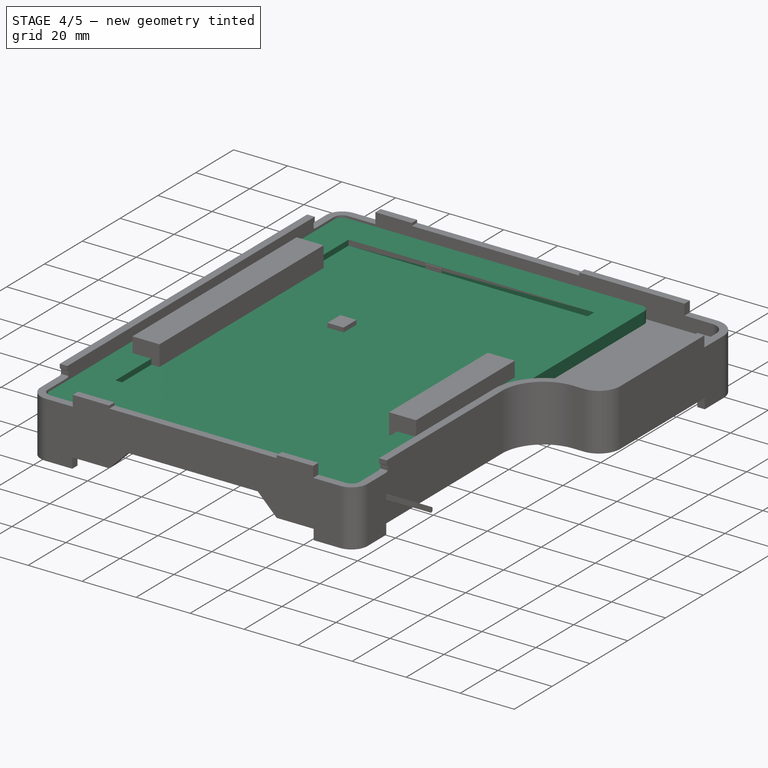
[diagram: stage 4 of 5 — iso view after this stage's code; geometry added in this stage tinted green]
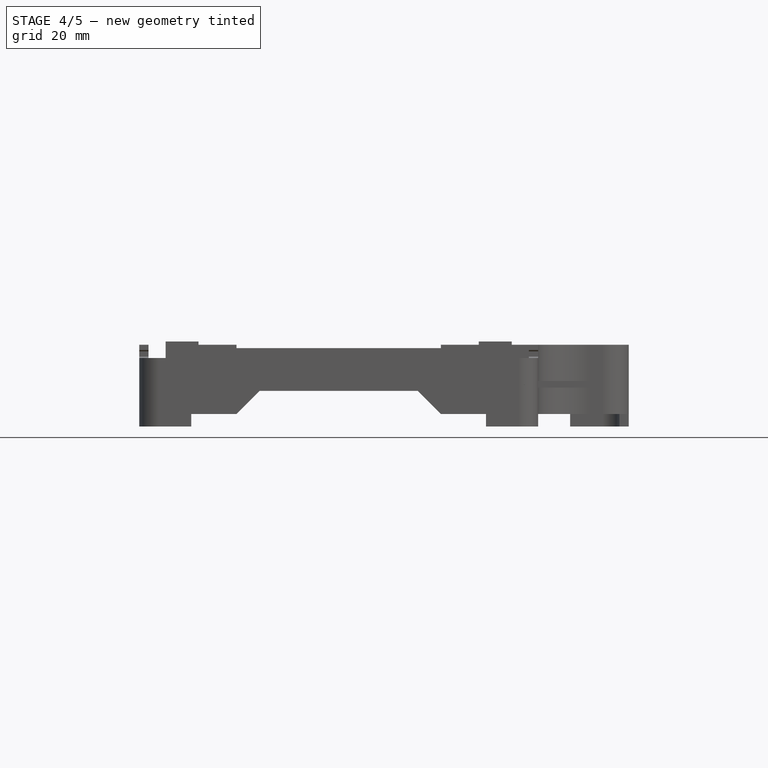
[diagram: stage 4 of 5 — front view after this stage's code; geometry added in this stage tinted green]
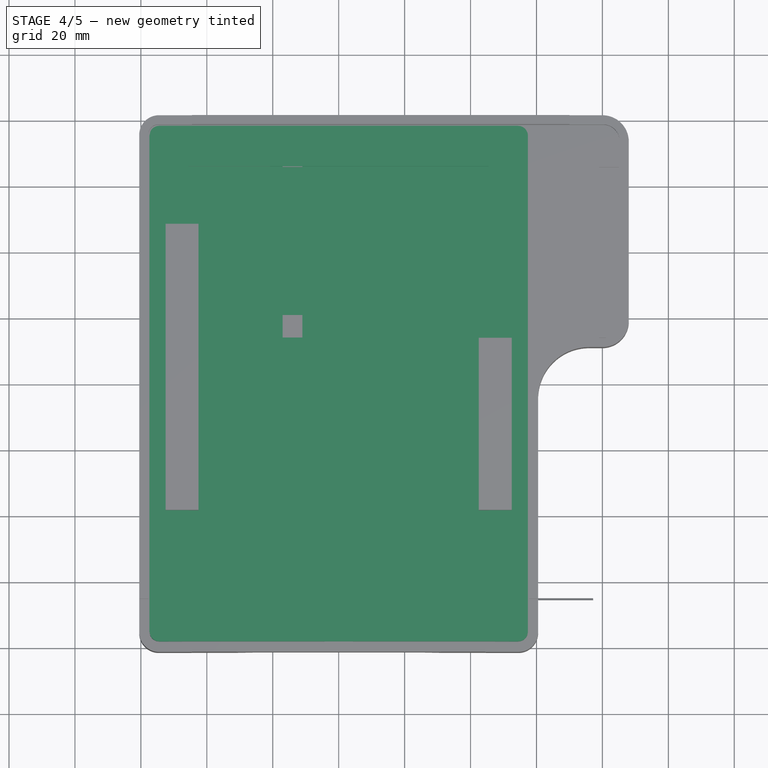
[diagram: stage 4 of 5 — top view after this stage's code; geometry added in this stage tinted green]
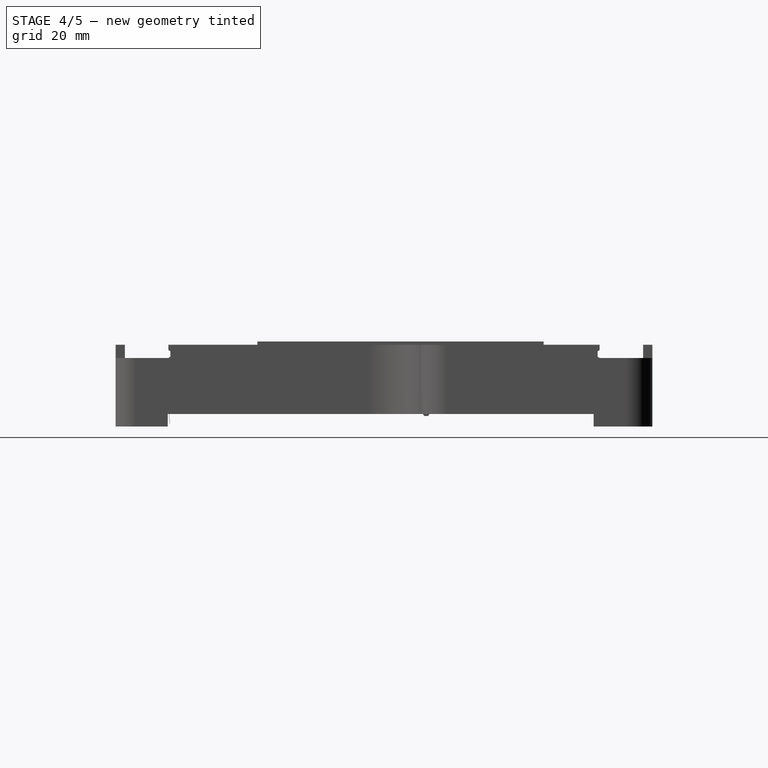
[diagram: stage 4 of 5 — right view after this stage's code; geometry added in this stage tinted green]
FEATURE [Sketcher::SketchObject] Sketch  label="Kobo-Outline"
  MapMode = 5
  Support = -> [XY_Plane]
  sketch-geometry (4):
    g0: LineSegment StartX=-57.5 StartY=78.4 StartZ=0 EndX=57.5 EndY=78.4 EndZ=0
    g1: LineSegment StartX=57.5 StartY=78.4 StartZ=0 EndX=57.5 EndY=-78.4 EndZ=0
    g2: LineSegment StartX=57.5 StartY=-78.4 StartZ=0 EndX=-57.5 EndY=-78.4 EndZ=0
    g3: LineSegment StartX=-57.5 StartY=-78.4 StartZ=0 EndX=-57.5 EndY=78.4 EndZ=0
  constraints (12):
    c: Coincident(g0,g1)
    c: Coincident(g1,g2)
    c: Coincident(g2,g3)
    c: Coincident(g3,g0)
    c: Horizontal(g0)
    c: Horizontal(g2)
    c: Vertical(g1)
    c: Vertical(g3)
    c: Symmetric(g0,g0,g-2)
    c: Symmetric(g0,g1,g-1)
    c: DistanceY(g1,g1) = 156.8
    c: DistanceX(g2,g2) = 115
FEATURE [Sketcher::SketchObject] Sketch001  label="Vario-Outline"
  MapMode = 5
  Support = -> [XY_Plane]
  sketch-geometry (17):
    g0: LineSegment StartX=-17 StartY=72.5 StartZ=0 EndX=85 EndY=72.5 EndZ=0
    g1: LineSegment StartX=85 StartY=72.5 StartZ=0 EndX=85 EndY=14 EndZ=0
    g2: LineSegment StartX=85 StartY=14 StartZ=0 EndX=-17 EndY=14 EndZ=0
    g3: LineSegment StartX=-17 StartY=14 StartZ=0 EndX=-17 EndY=72.5 EndZ=0
    g4: LineSegment StartX=58.5 StartY=70.9 StartZ=0 EndX=74.5 EndY=70.9 EndZ=0
    g5: LineSegment StartX=74.5 StartY=70.9 StartZ=0 EndX=74.5 EndY=54.9 EndZ=0
    g6: LineSegment StartX=74.5 StartY=54.9 StartZ=0 EndX=58.5 EndY=54.9 EndZ=0
    g7: LineSegment StartX=58.5 StartY=54.9 StartZ=0 EndX=58.5 EndY=70.9 EndZ=0
    g8: Circle CenterX=61.8 CenterY=39 CenterZ=0 NormalX=0 NormalY=0 NormalZ=1 AngleXU=0 Radius=1.5
    g9: Circle CenterX=61.8 CenterY=35 CenterZ=0 NormalX=0 NormalY=0 NormalZ=1 AngleXU=0 Radius=1.5
    g10: Circle CenterX=61.8 CenterY=31 CenterZ=0 NormalX=0 NormalY=0 NormalZ=1 AngleXU=0 Radius=1.5
    g11: Circle CenterX=61.8 CenterY=27 CenterZ=0 NormalX=0 NormalY=0 NormalZ=1 AngleXU=0 Radius=1.5
    g12: Circle CenterX=73 CenterY=34.2 CenterZ=0 NormalX=0 NormalY=0 NormalZ=1 AngleXU=0 Radius=7
    g13: LineSegment StartX=-5.7 StartY=71.8 StartZ=0 EndX=13.1 EndY=71.8 EndZ=0
    g14: LineSegment StartX=13.1 StartY=71.8 StartZ=0 EndX=13.1 EndY=49.8 EndZ=0
    g15: LineSegment StartX=13.1 StartY=49.8 StartZ=0 EndX=-5.7 EndY=49.8 EndZ=0
    g16: LineSegment StartX=-5.7 StartY=49.8 StartZ=0 EndX=-5.7 EndY=71.8 EndZ=0
  constraints (51):
    c: Coincident(g0,g1)
    c: Coincident(g1,g2)
    c: Coincident(g2,g3)
    c: Coincident(g3,g0)
    c: Horizontal(g0)
    c: Horizontal(g2)
    c: Vertical(g1)
    c: Vertical(g3)
    c: DistanceY(g1,g1) = 58.5
    c: DistanceX(g2,g2) = 102
    c: DistanceX(g2,g-1) = 17
    c: DistanceY(g-1,g2) = 14
    c: Coincident(g4,g5)
    c: Coincident(g5,g6)
    c: Coincident(g6,g7)
    c: Coincident(g7,g4)
    c: Horizontal(g4)
    c: Horizontal(g6)
    c: Vertical(g5)
    c: Vertical(g7)
    c: Coincident(g13,g14)
    c: Coincident(g14,g15)
    c: Coincident(g15,g16)
    c: Coincident(g16,g13)
    c: Horizontal(g13)
    c: Horizontal(g15)
    c: Vertical(g14)
    c: Vertical(g16)
    c: Equal(g4,g5)
    c: DistanceX(g4,g4) = 16
    c: Vertical(g8,g9)
    c: Vertical(g9,g10)
    c: Vertical(g10,g11)
    c: Equal(g11,g10)
    c: Equal(g10,g9)
    c: Equal(g9,g8)
    c: Radius(g8) = 1.5
    c: DistanceX(g2,g6) = 75.5
    c: DistanceX(g2,g11) = 78.8
    c: DistanceX(g2,g12) = 90
    c: DistanceY(g2,g11) = 13
    c: DistanceY(g2,g10) = 17
    c: DistanceY(g2,g9) = 21
    c: DistanceY(g2,g8) = 25
    c: DistanceY(g14,g14) = 22
    c: DistanceX(g13,g13) = 18.8
    c: DistanceX(g2,g15) = 11.3
    c: DistanceY(g2,g15) = 35.8
    c: DistanceY(g1,g5) = 40.9
    c: Radius(g12) = 7
    c: DistanceY(g1,g12) = 20.2
FEATURE [PartDesign::Body] Body  label="Sketch"
  Group = -> [Sketch,Sketch001]
  Origin = -> Origin
FEATURE [PartDesign::ShapeBinder] ShapeBinder  label="ShapeBinder-Kobo"
  Support = -> [Sketch]
FEATURE [PartDesign::ShapeBinder] ShapeBinder001  label="ShapeBinder-Vario"
  Support = -> [Sketch001]
FEATURE [PartDesign::ShapeBinder] ShapeBinder002
  Support = -> [Sketch]
FEATURE [Sketcher::SketchObject] Sketch003
  MapMode = 5
  Placement = pos=(0,0,0) rot=(1,0,0;1.5708rad)
  Support = -> [XZ_Plane003]
  sketch-geometry (6):
    g0: LineSegment StartX=-57.4 StartY=6.4 StartZ=0 EndX=57.4 EndY=6.4 EndZ=0
    g1: LineSegment StartX=57.4 StartY=6.4 StartZ=0 EndX=57.4 EndY=-1.1 EndZ=0
    g2: LineSegment StartX=37.4 StartY=-2.6 StartZ=0 EndX=-37.4 EndY=-2.6 EndZ=0
    g3: LineSegment StartX=-57.4 StartY=-1.1 StartZ=0 EndX=-57.4 EndY=6.4 EndZ=0
    g4: LineSegment StartX=-57.4 StartY=-1.1 StartZ=0 EndX=-37.4 EndY=-2.6 EndZ=0
    g5: LineSegment StartX=37.4 StartY=-2.6 StartZ=0 EndX=57.4 EndY=-1.1 EndZ=0
  constraints (16):
    c: Coincident(g0,g1)
    c: Coincident(g3,g0)
    c: Vertical(g1)
    c: Vertical(g3)
    c: Coincident(g2,g5)
    c: Coincident(g1,g5)
    c: Coincident(g2,g4)
    c: Coincident(g3,g4)
    c: Symmetric(g0,g0,g-2)
    c: Equal(g3,g1)
    c: Symmetric(g2,g2,g-2)
    c: DistanceX(g0,g0) = 114.8
    c: DistanceY(g2,g-1) = 2.6
    c: DistanceY(g3,g3) = 7.5
    c: DistanceX(g3,g2) = 20
    c: DistanceY(g2,g0) = 9
FEATURE [PartDesign::Pad] Pad
  Length = 78.2
  Length2 = 78.2
  Placement = pos=(0,0,0) rot=(1,0,0;1.5708rad)
  Profile = -> Sketch003
  Type = 4
FEATURE [Sketcher::SketchObject] Sketch004
  ExternalGeometry = -> [ShapeBinder002]
  MapMode = 5
  Placement = pos=(0,0,6.4) rot=(0,0,1;3.14159rad)
  Support = -> [Pad]
  sketch-geometry (4):
    g0: LineSegment StartX=-45.5 StartY=57.4 StartZ=0 EndX=45.5 EndY=57.4 EndZ=0
    g1: LineSegment StartX=45.5 StartY=57.4 StartZ=0 EndX=45.5 EndY=-65.9 EndZ=0
    g2: LineSegment StartX=45.5 StartY=-65.9 StartZ=0 EndX=-45.5 EndY=-65.9 EndZ=0
    g3: LineSegment StartX=-45.5 StartY=-65.9 StartZ=0 EndX=-45.5 EndY=57.4 EndZ=0
  constraints (11):
    c: Coincident(g0,g1)
    c: Coincident(g1,g2)
    c: Coincident(g2,g3)
    c: Coincident(g3,g0)
    c: Vertical(g1)
    c: Vertical(g3)
    c: Symmetric(g0,g0,g-2)
    c: DistanceX(g-3,g0) = 12
    c: DistanceY(g0,g-3) = 21
    c: Horizontal(g2)
    c: DistanceY(g-4,g1) = 12.5
FEATURE [PartDesign::Pocket] Pocket
  BaseFeature = -> Pad
  Length = 2
  Length2 = 100
  Placement = pos=(0,0,0) rot=(1,0,0;1.5708rad)
  Profile = -> Sketch004
  Type = 0
FEATURE [Sketcher::SketchObject] Sketch005
  ExternalGeometry = -> [ShapeBinder002]
  MapMode = 5
  Placement = pos=(0,0,-2.6) rot=(1,0,0;3.14159rad)
  Support = -> [Pocket]
  sketch-geometry (8):
    g0: LineSegment StartX=-53.5 StartY=76.4 StartZ=0 EndX=53.5 EndY=76.4 EndZ=0
    g1: LineSegment StartX=55.5 StartY=74.4 StartZ=0 EndX=55.5 EndY=-74.4 EndZ=0
    g2: LineSegment StartX=53.5 StartY=-76.4 StartZ=0 EndX=-53.5 EndY=-76.4 EndZ=0
    g3: LineSegment StartX=-55.5 StartY=-74.4 StartZ=0 EndX=-55.5 EndY=74.4 EndZ=0
    g4: ArcOfCircle CenterX=-53.5 CenterY=74.4 CenterZ=0 NormalX=0 NormalY=0 NormalZ=1 AngleXU=0 Radius=2 StartAngle=1.5708 EndAngle=3.14159
    g5: ArcOfCircle CenterX=53.5 CenterY=74.4 CenterZ=0 NormalX=0 NormalY=0 NormalZ=1 AngleXU=0 Radius=2 StartAngle=0 EndAngle=1.5708
    g6: ArcOfCircle CenterX=53.5 CenterY=-74.4 CenterZ=0 NormalX=0 NormalY=0 NormalZ=1 AngleXU=0 Radius=2 StartAngle=4.71239 EndAngle=6.28319
    g7: ArcOfCircle CenterX=-53.5 CenterY=-74.4 CenterZ=0 NormalX=0 NormalY=0 NormalZ=1 AngleXU=0 Radius=2 StartAngle=3.14159 EndAngle=4.71239
  constraints (20):
    c: Horizontal(g0)
    c: Horizontal(g2)
    c: Vertical(g1)
    c: Vertical(g3)
    c: Tangent(g0,g4) = 1.5708
    c: Tangent(g3,g4) = 1.5708
    c: Tangent(g0,g5) = 1.5708
    c: Tangent(g1,g5) = 1.5708
    c: Tangent(g1,g6) = 1.5708
    c: Tangent(g2,g6) = 1.5708
    c: Tangent(g2,g7) = 1.5708
    c: Tangent(g3,g7) = 1.5708
    c: Vertical(g4,g7)
    c: Vertical(g5,g6)
    c: Horizontal(g4,g5)
    c: DistanceX(g3,g4) = 2
    c: DistanceX(g-3,g4) = 4
    c: DistanceY(g4,g-3) = 4
    c: DistanceX(g6,g-4) = 4
    c: DistanceY(g-4,g6) = 4
FEATURE [PartDesign::Pocket] Pocket001
  BaseFeature = -> Pocket
  Length = 2.6
  Length2 = 100
  Placement = pos=(0,0,0) rot=(1,0,0;1.5708rad)
  Profile = -> Sketch005
  Type = 0
FEATURE [PartDesign::Fillet] Fillet
  Base = -> Pocket001 [Edge24,Edge21,Edge4,Edge3]
  BaseFeature = -> Pocket001
  Placement = pos=(0,0,0) rot=(1,0,0;1.5708rad)
  Radius = 3
FEATURE [PartDesign::Body] Body004  label="Vario"
  Group = -> [ShapeBinder003,Sketch006,Pad001,Sketch007,Pad002,Sketch008,Pad003,Sketch009,Pad004,Sketch010,Pad005]
  Origin = -> Origin004
  Placement = pos=(0,0,4) rot=(0,0,1;0rad)
  Tip = -> Pad005
FEATURE [Sketcher::SketchObject] Sketch012
  ExternalGeometry = -> [Fillet]
  MapMode = 5
  Placement = pos=(0,-78.2,0) rot=(1,0,0;1.5708rad)
  Support = -> [Fillet]
  sketch-geometry (4):
    g0: LineSegment StartX=-4.3 StartY=3.2 StartZ=0 EndX=4.3 EndY=3.2 EndZ=0
    g1: LineSegment StartX=4.3 StartY=3.2 StartZ=0 EndX=4.3 EndY=0 EndZ=0
    g2: LineSegment StartX=4.3 StartY=0 StartZ=0 EndX=-4.3 EndY=0 EndZ=0
    g3: LineSegment StartX=-4.3 StartY=0 StartZ=0 EndX=-4.3 EndY=3.2 EndZ=0
  constraints (11):
    c: Coincident(g0,g1)
    c: Coincident(g1,g2)
    c: Coincident(g2,g3)
    c: Coincident(g3,g0)
    c: Horizontal(g0)
    c: Vertical(g1)
    c: Vertical(g3)
    c: Symmetric(g2,g1,g-2)
    c: DistanceX(g2,g2) = 8.6
    c: DistanceY(g1,g1) = 3.2
    c: DistanceY(g-3,g1) = 2.6
FEATURE [PartDesign::Pocket] Pocket003
  BaseFeature = -> Fillet
  Length = 1
  Length2 = 100
  Placement = pos=(0,0,0) rot=(1,0,0;1.5708rad)
  Profile = -> Sketch012
  Type = 0
FEATURE [Sketcher::SketchObject] Sketch034  label="HolleLT2"
  ExternalGeometry = -> [SubtractiveLoft001]
  MapMode = 5
  Placement = pos=(0,64.8,0) rot=(0,0.707107,0.707107;3.14159rad)
  Support = -> [DatumPlane002]
  sketch-geometry (4):
    g0: LineSegment StartX=57.7 StartY=9 StartZ=0 EndX=60.5 EndY=9 EndZ=0
    g1: LineSegment StartX=60.5 StartY=9 StartZ=0 EndX=60.5 EndY=7.4 EndZ=0
    g2: LineSegment StartX=60.5 StartY=7.4 StartZ=0 EndX=57.7 EndY=7.4 EndZ=0
    g3: LineSegment StartX=57.7 StartY=7.4 StartZ=0 EndX=57.7 EndY=9 EndZ=0
  constraints (12):
    c: Coincident(g0,g1)
    c: Coincident(g1,g2)
    c: Coincident(g2,g3)
    c: Coincident(g3,g0)
    c: Horizontal(g0)
    c: Horizontal(g2)
    c: Vertical(g1)
    c: Vertical(g3)
    c: PointOnObject(g1,g-3)
    c: PointOnObject(g2,g-4)
    c: DistanceY(g1,g1) = 1.6
    c: DistanceY(g-3,g1) = 0.4
FEATURE [PartDesign::SubtractiveLoft] SubtractiveLoft002  label="SubtractiveLT"
  BaseFeature = -> SubtractiveLoft001
  Closed = false
  Profile = -> Sketch029
  Ruled = false
  Sections = -> [Sketch034]
FEATURE [Sketcher::SketchObject] Sketch035  label="HoleRT2"
  ExternalGeometry = -> [SubtractiveLoft002]
  MapMode = 5
  Placement = pos=(0,62.8,0) rot=(0,0.707107,0.707107;3.14159rad)
  Support = -> [DatumPlane001]
  sketch-geometry (4):
    g0: LineSegment StartX=-85 StartY=9 StartZ=0 EndX=-82.2 EndY=9 EndZ=0
    g1: LineSegment StartX=-82.2 StartY=9 StartZ=0 EndX=-82.2 EndY=7.4 EndZ=0
    g2: LineSegment StartX=-82.2 StartY=7.4 StartZ=0 EndX=-85 EndY=7.4 EndZ=0
    g3: LineSegment StartX=-85 StartY=7.4 StartZ=0 EndX=-85 EndY=9 EndZ=0
  constraints (9):
    c: Coincident(g0,g1)
    c: Coincident(g1,g2)
    c: Coincident(g2,g3)
    c: Coincident(g3,g0)
    c: Horizontal(g0)
    c: Horizontal(g2)
    c: Vertical(g1)
    c: Vertical(g3)
    c: DistanceY(g3,g3) = 1.6
FEATURE [PartDesign::SubtractiveLoft] SubtractiveLoft003  label="SubtractiveRT"
  BaseFeature = -> SubtractiveLoft002
  Closed = false
  Profile = -> Sketch028
  Ruled = false
  Sections = -> [Sketch035]
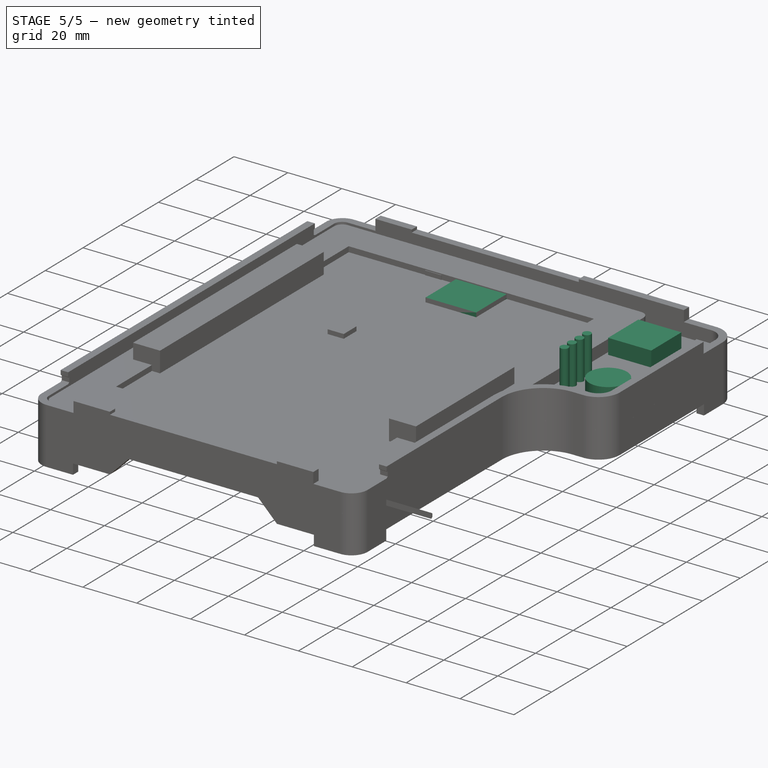
[diagram: stage 5 of 5 — iso view after this stage's code; geometry added in this stage tinted green]
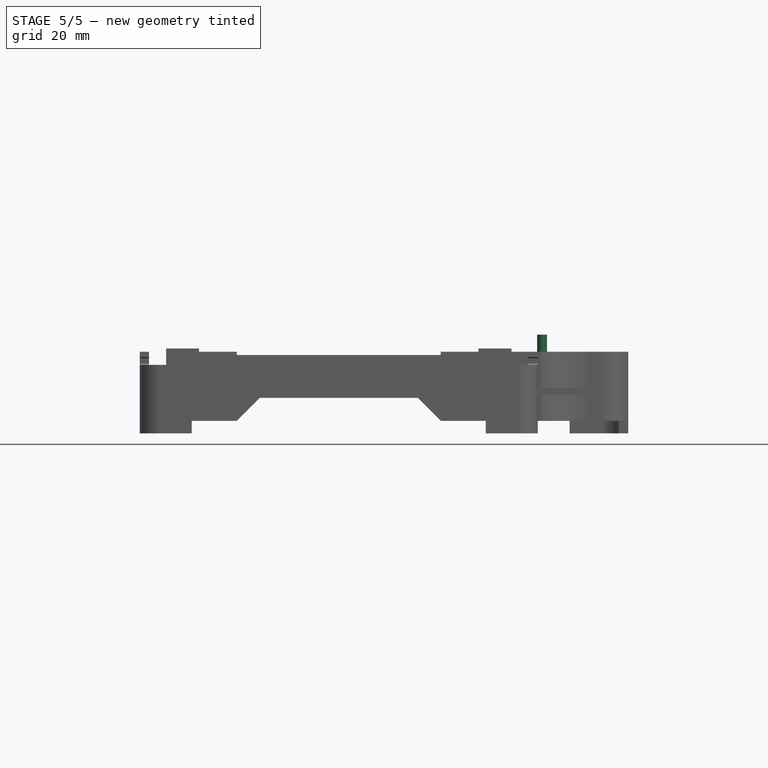
[diagram: stage 5 of 5 — front view after this stage's code; geometry added in this stage tinted green]
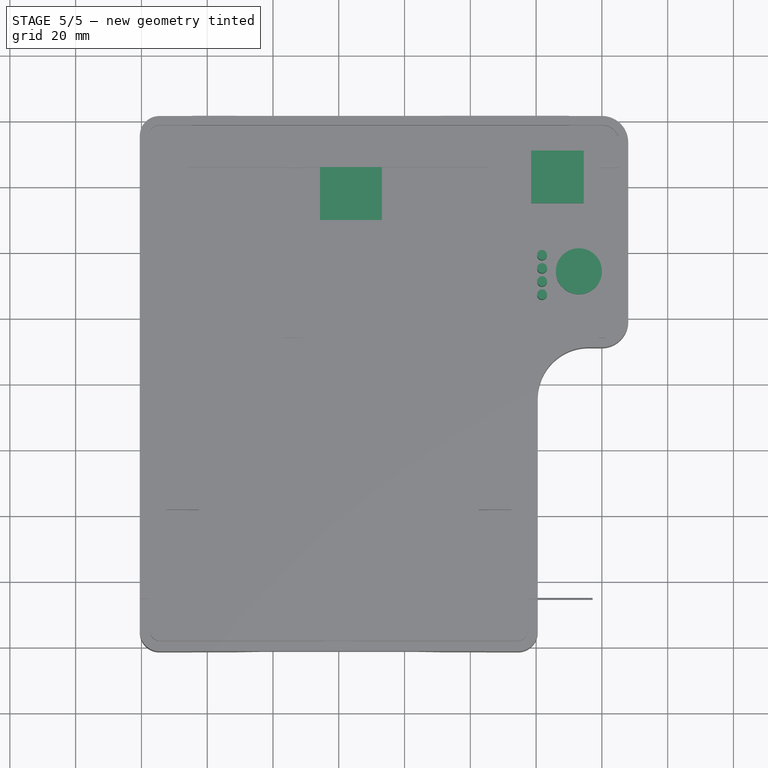
[diagram: stage 5 of 5 — top view after this stage's code; geometry added in this stage tinted green]
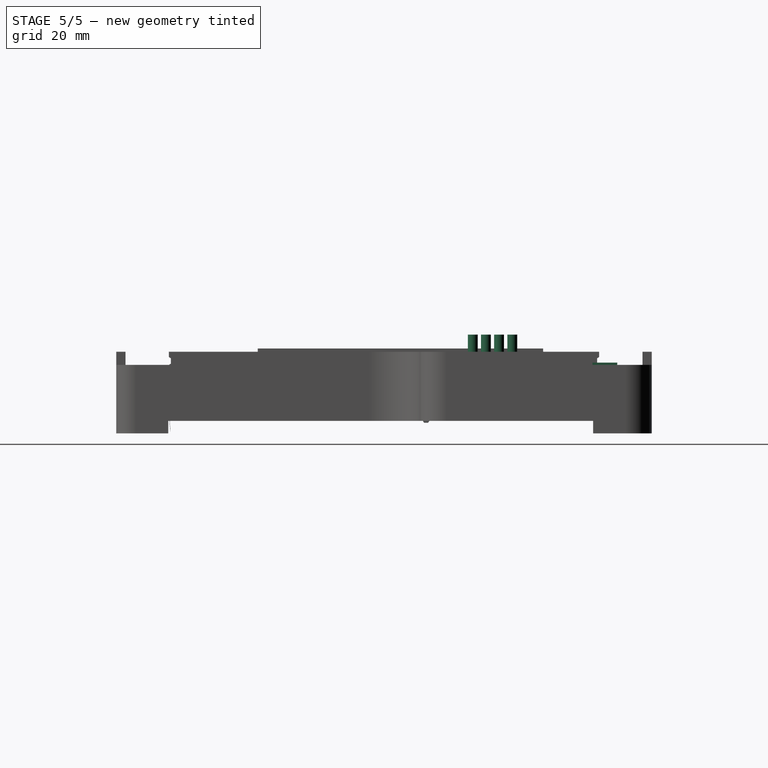
[diagram: stage 5 of 5 — right view after this stage's code; geometry added in this stage tinted green]
FEATURE [PartDesign::ShapeBinder] ShapeBinder003
  Support = -> [Sketch001]
FEATURE [Sketcher::SketchObject] Sketch006
  ExternalGeometry = -> [ShapeBinder003]
  MapMode = 5
  Support = -> [XY_Plane004]
  sketch-geometry (12):
    g0: LineSegment StartX=-10.625 StartY=72.5 StartZ=0 EndX=78.625 EndY=72.5 EndZ=0
    g1: LineSegment StartX=85 StartY=65.575 StartZ=0 EndX=85 EndY=20.925 EndZ=0
    g2: LineSegment StartX=78.625 StartY=14 StartZ=0 EndX=-10.625 EndY=14 EndZ=0
    g3: LineSegment StartX=-17 StartY=20.925 StartZ=0 EndX=-17 EndY=65.575 EndZ=0
    g4: LineSegment StartX=78.625 StartY=20.925 StartZ=0 EndX=85 EndY=20.925 EndZ=0
    g5: LineSegment StartX=78.625 StartY=14 StartZ=0 EndX=78.625 EndY=20.925 EndZ=0
    g6: LineSegment StartX=85 StartY=65.575 StartZ=0 EndX=78.625 EndY=65.575 EndZ=0
    g7: LineSegment StartX=78.625 StartY=65.575 StartZ=0 EndX=78.625 EndY=72.5 EndZ=0
    g8: LineSegment StartX=-10.625 StartY=72.5 StartZ=0 EndX=-10.625 EndY=65.575 EndZ=0
    g9: LineSegment StartX=-10.625 StartY=65.575 StartZ=0 EndX=-17 EndY=65.575 EndZ=0
    g10: LineSegment StartX=-17 StartY=20.925 StartZ=0 EndX=-10.625 EndY=20.925 EndZ=0
    g11: LineSegment StartX=-10.625 StartY=20.925 StartZ=0 EndX=-10.625 EndY=14 EndZ=0
  constraints (36):
    c: Horizontal(g0)
    c: Horizontal(g2)
    c: Vertical(g1)
    c: Vertical(g3)
    c: Coincident(g5,g4)
    c: Horizontal(g4)
    c: Vertical(g5)
    c: Coincident(g6,g7)
    c: Horizontal(g6)
    c: Vertical(g7)
    c: Coincident(g8,g9)
    c: Horizontal(g9)
    c: Vertical(g8)
    c: Coincident(g10,g11)
    c: Horizontal(g10)
    c: Vertical(g11)
    c: Coincident(g0,g8)
    c: Coincident(g3,g9)
    c: Coincident(g0,g7)
    c: Coincident(g1,g6)
    c: Coincident(g1,g4)
    c: Coincident(g2,g5)
    c: Coincident(g2,g11)
    c: Coincident(g3,g10)
    c: Vertical(g8,g10)
    c: Vertical(g6,g4)
    c: Horizontal(g6,g8)
    c: Horizontal(g10,g4)
    c: Vertical(g3,g-3)
    c: Vertical(g-4,g1)
    c: Horizontal(g2,g-5)
    c: Horizontal(g-4,g0)
    c: Equal(g8,g11)
    c: Equal(g10,g4)
    c: DistanceY(g3,g3) = 44.65
    c: DistanceX(g0,g0) = 89.25
FEATURE [PartDesign::Pad] Pad001  label="PCB"
  Length = 1.2
  Length2 = 100
  Profile = -> Sketch006
  Type = 0
FEATURE [Sketcher::SketchObject] Sketch007
  ExternalGeometry = -> [ShapeBinder003]
  MapMode = 5
  Placement = pos=(0,0,1.2) rot=(0,0,1;0rad)
  Support = -> [Pad001]
  sketch-geometry (4):
    g0: LineSegment StartX=58.5 StartY=70.9 StartZ=0 EndX=74.5 EndY=70.9 EndZ=0
    g1: LineSegment StartX=74.5 StartY=70.9 StartZ=0 EndX=74.5 EndY=54.9 EndZ=0
    g2: LineSegment StartX=74.5 StartY=54.9 StartZ=0 EndX=58.5 EndY=54.9 EndZ=0
    g3: LineSegment StartX=58.5 StartY=54.9 StartZ=0 EndX=58.5 EndY=70.9 EndZ=0
  constraints (10):
    c: Coincident(g0,g1)
    c: Coincident(g1,g2)
    c: Coincident(g2,g3)
    c: Coincident(g3,g0)
    c: Horizontal(g0)
    c: Horizontal(g2)
    c: Vertical(g1)
    c: Vertical(g3)
    c: Coincident(g-4,g2)
    c: Coincident(g-3,g0)
FEATURE [PartDesign::Pad] Pad002  label="GPS"
  BaseFeature = -> Pad001
  Length = 6.5
  Length2 = 100
  Profile = -> Sketch007
  Type = 0
FEATURE [Sketcher::SketchObject] Sketch008
  ExternalGeometry = -> [ShapeBinder003]
  MapMode = 5
  Placement = pos=(0,0,1.2) rot=(0,0,1;0rad)
  Support = -> [Pad002]
  sketch-geometry (4):
    g0: Circle CenterX=61.8 CenterY=39 CenterZ=0 NormalX=0 NormalY=0 NormalZ=1 AngleXU=0 Radius=1.5
    g1: Circle CenterX=61.8 CenterY=35 CenterZ=0 NormalX=0 NormalY=0 NormalZ=1 AngleXU=0 Radius=1.5
    g2: Circle CenterX=61.8 CenterY=31 CenterZ=0 NormalX=0 NormalY=0 NormalZ=1 AngleXU=0 Radius=1.5
    g3: Circle CenterX=61.8 CenterY=27 CenterZ=0 NormalX=0 NormalY=0 NormalZ=1 AngleXU=0 Radius=1.5
  constraints (8):
    c: Equal(g3,g2)
    c: Equal(g2,g1)
    c: Equal(g1,g0)
    c: Radius(g0) = 1.5
    c: Coincident(g3,g-6)
    c: Coincident(g-5,g2)
    c: Coincident(g-4,g1)
    c: Coincident(g-3,g0)
FEATURE [PartDesign::Pad] Pad003  label="LED"
  BaseFeature = -> Pad002
  Length = 15
  Length2 = 100
  Profile = -> Sketch008
  Type = 0
FEATURE [Sketcher::SketchObject] Sketch009
  ExternalGeometry = -> [ShapeBinder003]
  MapMode = 5
  Placement = pos=(0,0,1.2) rot=(0,0,1;0rad)
  Support = -> [Pad003]
  sketch-geometry (1):
    g0: Circle CenterX=73 CenterY=34.2 CenterZ=0 NormalX=0 NormalY=0 NormalZ=1 AngleXU=0 Radius=7
  constraints (2):
    c: Radius(g0) = 7
    c: Coincident(g0,g-3)
FEATURE [PartDesign::Pad] Pad004  label="PIEZO"
  BaseFeature = -> Pad003
  Length = 5
  Length2 = 100
  Profile = -> Sketch009
  Type = 0
FEATURE [Sketcher::SketchObject] Sketch010
  ExternalGeometry = -> [ShapeBinder003]
  MapMode = 5
  Placement = pos=(0,0,1.2) rot=(0,0,1;0rad)
  Support = -> [Pad004]
  sketch-geometry (4):
    g0: LineSegment StartX=-5.7 StartY=71.8 StartZ=0 EndX=13.1 EndY=71.8 EndZ=0
    g1: LineSegment StartX=13.1 StartY=71.8 StartZ=0 EndX=13.1 EndY=49.8 EndZ=0
    g2: LineSegment StartX=13.1 StartY=49.8 StartZ=0 EndX=-5.7 EndY=49.8 EndZ=0
    g3: LineSegment StartX=-5.7 StartY=49.8 StartZ=0 EndX=-5.7 EndY=71.8 EndZ=0
  constraints (10):
    c: Coincident(g0,g1)
    c: Coincident(g1,g2)
    c: Coincident(g2,g3)
    c: Coincident(g3,g0)
    c: Horizontal(g0)
    c: Horizontal(g2)
    c: Vertical(g1)
    c: Vertical(g3)
    c: Coincident(g0,g-3)
    c: Coincident(g-4,g2)
FEATURE [PartDesign::Pad] Pad005  label="IMU"
  BaseFeature = -> Pad004
  Length = 4.8
  Length2 = 100
  Profile = -> Sketch010
  Type = 0
FEATURE [Sketcher::SketchObject] Sketch013
  ExternalGeometry = -> [Pocket003]
  MapMode = 5
  Placement = pos=(0,78.2,0) rot=(-1,0,0;1.5708rad)
  Support = -> [Pocket003]
  sketch-geometry (4):
    g0: LineSegment StartX=-10 StartY=1 StartZ=0 EndX=10 EndY=1 EndZ=0
    g1: LineSegment StartX=10 StartY=1 StartZ=0 EndX=10 EndY=-4.6 EndZ=0
    g2: LineSegment StartX=10 StartY=-4.6 StartZ=0 EndX=-10 EndY=-4.6 EndZ=0
    g3: LineSegment StartX=-10 StartY=-4.6 StartZ=0 EndX=-10 EndY=1 EndZ=0
  constraints (11):
    c: Coincident(g0,g1)
    c: Coincident(g1,g2)
    c: Coincident(g2,g3)
    c: Coincident(g3,g0)
    c: Horizontal(g0)
    c: Vertical(g1)
    c: Vertical(g3)
    c: Symmetric(g2,g1,g-2)
    c: DistanceX(g2,g2) = 20
    c: DistanceY(g1,g1) = 5.6
    c: DistanceY(g0,g-3) = 1.6
FEATURE [PartDesign::Pocket] Pocket004
  BaseFeature = -> Pocket003
  Length = 1
  Length2 = 100
  Placement = pos=(0,0,0) rot=(1,0,0;1.5708rad)
  Profile = -> Sketch013
  Type = 0
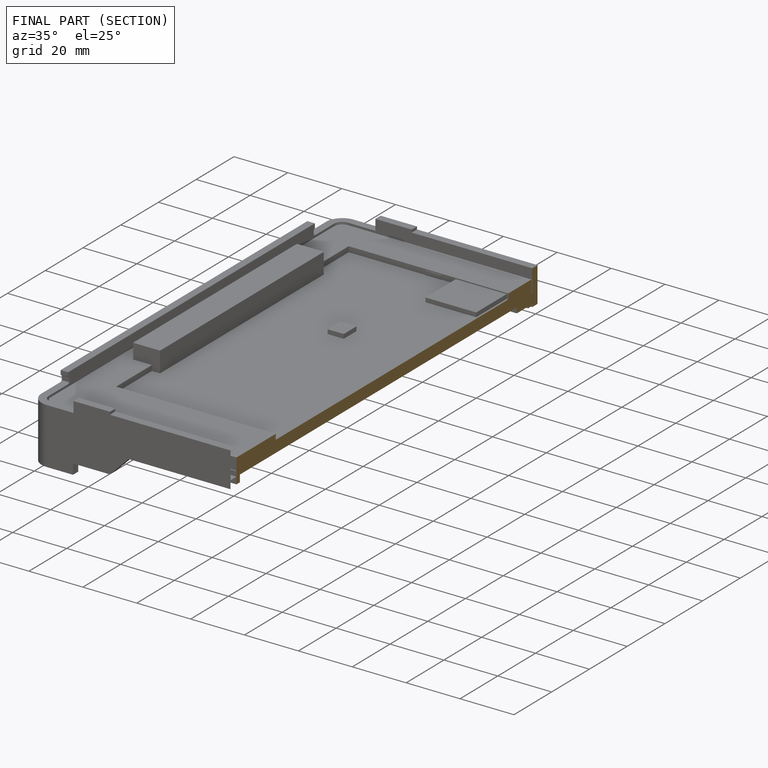
[diagram: finished part — half-section view (interior)]
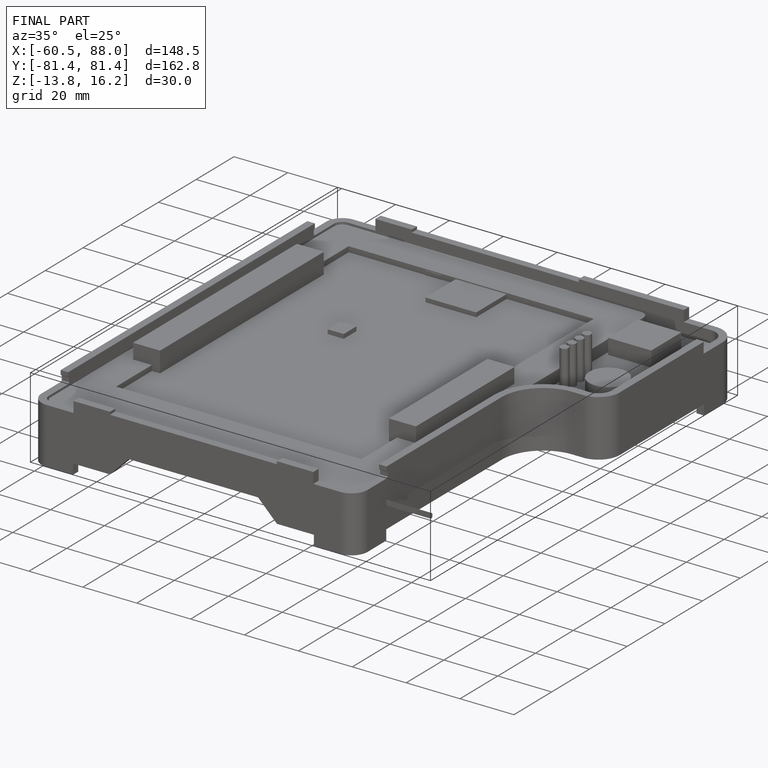
[diagram: finished part — iso view with bounding-box wireframe]
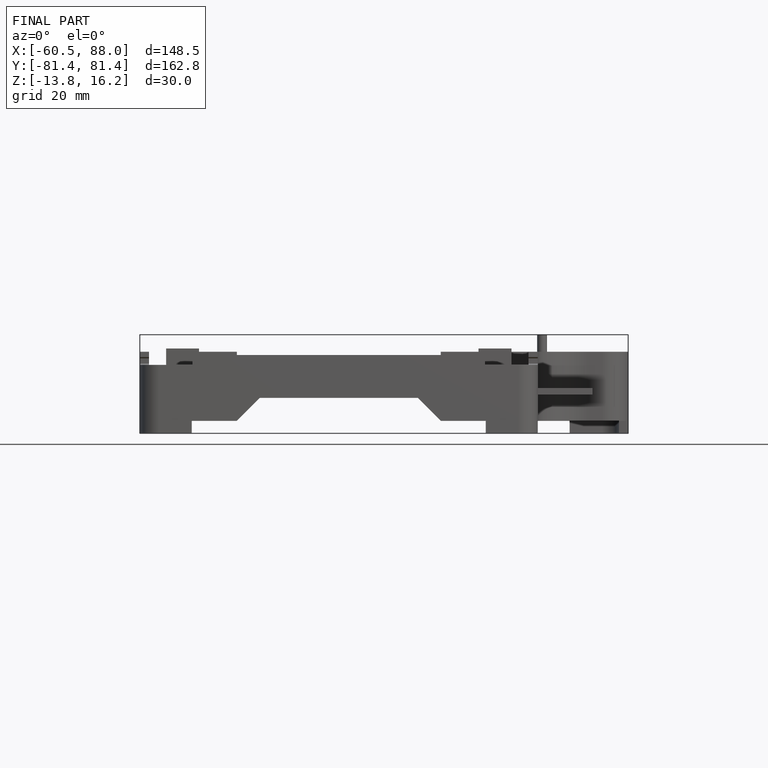
[diagram: finished part — front view with bounding-box wireframe]
